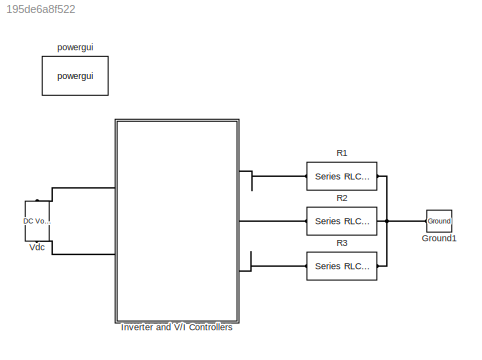
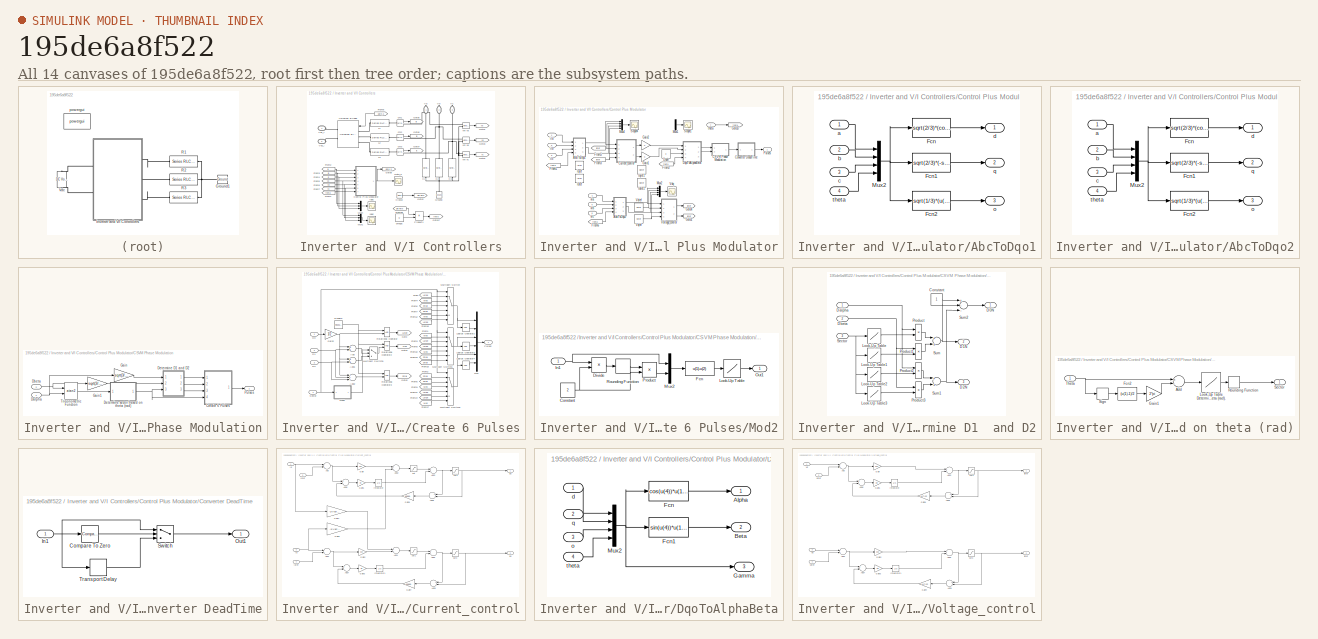
[diagram: thumbnail index - all 14 canvases of the model, root first then tree order]
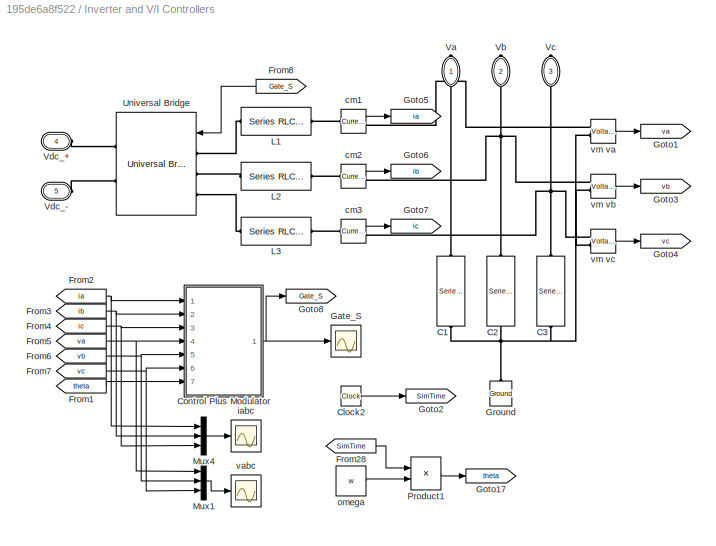
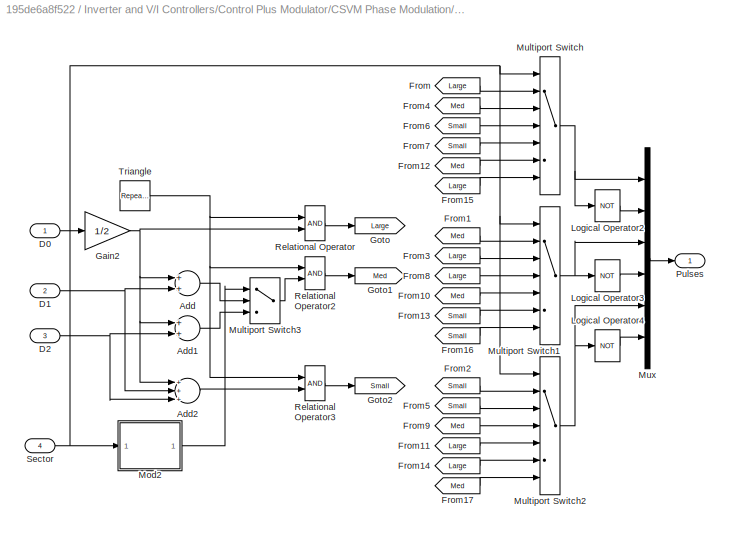
MODEL slx_195de6a8f522
KIND model
CONFIG AbsTol = 1e-5
CONFIG EnableMultiTasking = on
CONFIG FixedStep = auto
CONFIG MaxStep = 2e-6
CONFIG MinStep = auto
CONFIG RelTol = 1e-4
CONFIG SampleTimeConstraint = Unconstrained
CONFIG Solver = ode23t
CONFIG SolverName = ode23t
CONFIG StartTime = 0
CONFIG StopTime = 0.2
BLOCK [Reference] Ground1  REF=powerlib/Elements/Ground
  Ports = [0, 0, 0, 0, 0, 1]
  SourceBlock = powerlib/Elements/Ground
  SourceProductBaseCode = PS
  SourceProductName = Simscape Electrical
  SourceType = Ground
BLOCK [SubSystem] Inverter and V//I Controllers
  Ports = [0, 0, 0, 0, 0, 2, 3]
  RequestExecContextInheritance = off
BLOCK [Reference] Inverter and V//I Controllers/C1  REF=powerlib/Elements/Series RLC Branch
  Ports = [0, 0, 0, 0, 0, 1, 1]
  SourceBlock = powerlib/Elements/Series RLC Branch
  SourceProductBaseCode = PS
  SourceProductName = Simscape Electrical
  SourceType = Series RLC Branch
BLOCK [Reference] Inverter and V//I Controllers/C2  REF=powerlib/Elements/Series RLC Branch
  Ports = [0, 0, 0, 0, 0, 1, 1]
  SourceBlock = powerlib/Elements/Series RLC Branch
  SourceProductBaseCode = PS
  SourceProductName = Simscape Electrical
  SourceType = Series RLC Branch
BLOCK [Reference] Inverter and V//I Controllers/C3  REF=powerlib/Elements/Series RLC Branch
  Ports = [0, 0, 0, 0, 0, 1, 1]
  SourceBlock = powerlib/Elements/Series RLC Branch
  SourceProductBaseCode = PS
  SourceProductName = Simscape Electrical
  SourceType = Series RLC Branch
BLOCK [Clock] Inverter and V//I Controllers/Clock2
BLOCK [SubSystem] Inverter and V//I Controllers/Control Plus Modulator
  Ports = [7, 1]
  RequestExecContextInheritance = off
BLOCK [SubSystem] Inverter and V//I Controllers/Control Plus Modulator/AbcToDqo1
  Ports = [4, 3]
  RequestExecContextInheritance = off
BLOCK [Fcn] Inverter and V//I Controllers/Control Plus Modulator/AbcToDqo1/Fcn
  Expr = sqrt(2/3)*(cos(u(4))*u(1)+cos(u(4)-2*pi/3)*u(2)+cos(u(4)+2*pi/3)*u(3))
BLOCK [Fcn] Inverter and V//I Controllers/Control Plus Modulator/AbcToDqo1/Fcn1
  Expr = sqrt(2/3)*(-sin(u(4))*u(1)-sin(u(4)-2*pi/3)*u(2)-sin(u(4)+2*pi/3)*u(3))
BLOCK [Fcn] Inverter and V//I Controllers/Control Plus Modulator/AbcToDqo1/Fcn2
  Expr = sqrt(1/3)*(u(1)+u(2)+u(3))
BLOCK [Mux] Inverter and V//I Controllers/Control Plus Modulator/AbcToDqo1/Mux2
  DisplayOption = bar
  Ports = [4, 1]
BLOCK [Inport] Inverter and V//I Controllers/Control Plus Modulator/AbcToDqo1/a
  IconDisplay = Port number
BLOCK [Inport] Inverter and V//I Controllers/Control Plus Modulator/AbcToDqo1/b
  IconDisplay = Port number
  Port = 2
BLOCK [Inport] Inverter and V//I Controllers/Control Plus Modulator/AbcToDqo1/c
  IconDisplay = Port number
  Port = 3
BLOCK [Outport] Inverter and V//I Controllers/Control Plus Modulator/AbcToDqo1/d
  IconDisplay = Port number
BLOCK [Outport] Inverter and V//I Controllers/Control Plus Modulator/AbcToDqo1/o
  IconDisplay = Port number
  Port = 3
BLOCK [Outport] Inverter and V//I Controllers/Control Plus Modulator/AbcToDqo1/q
  IconDisplay = Port number
  Port = 2
BLOCK [Inport] Inverter and V//I Controllers/Control Plus Modulator/AbcToDqo1/theta
  IconDisplay = Port number
  Port = 4
BLOCK [SubSystem] Inverter and V//I Controllers/Control Plus Modulator/AbcToDqo2
  Ports = [4, 3]
  RequestExecContextInheritance = off
BLOCK [Fcn] Inverter and V//I Controllers/Control Plus Modulator/AbcToDqo2/Fcn
  Expr = sqrt(2/3)*(cos(u(4))*u(1)+cos(u(4)-2*pi/3)*u(2)+cos(u(4)+2*pi/3)*u(3))
BLOCK [Fcn] Inverter and V//I Controllers/Control Plus Modulator/AbcToDqo2/Fcn1
  Expr = sqrt(2/3)*(-sin(u(4))*u(1)-sin(u(4)-2*pi/3)*u(2)-sin(u(4)+2*pi/3)*u(3))
BLOCK [Fcn] Inverter and V//I Controllers/Control Plus Modulator/AbcToDqo2/Fcn2
  Expr = sqrt(1/3)*(u(1)+u(2)+u(3))
BLOCK [Mux] Inverter and V//I Controllers/Control Plus Modulator/AbcToDqo2/Mux2
  DisplayOption = bar
  Ports = [4, 1]
BLOCK [Inport] Inverter and V//I Controllers/Control Plus Modulator/AbcToDqo2/a
  IconDisplay = Port number
BLOCK [Inport] Inverter and V//I Controllers/Control Plus Modulator/AbcToDqo2/b
  IconDisplay = Port number
  Port = 2
BLOCK [Inport] Inverter and V//I Controllers/Control Plus Modulator/AbcToDqo2/c
  IconDisplay = Port number
  Port = 3
BLOCK [Outport] Inverter and V//I Controllers/Control Plus Modulator/AbcToDqo2/d
  IconDisplay = Port number
BLOCK [Outport] Inverter and V//I Controllers/Control Plus Modulator/AbcToDqo2/o
  IconDisplay = Port number
  Port = 3
BLOCK [Outport] Inverter and V//I Controllers/Control Plus Modulator/AbcToDqo2/q
  IconDisplay = Port number
  Port = 2
BLOCK [Inport] Inverter and V//I Controllers/Control Plus Modulator/AbcToDqo2/theta
  IconDisplay = Port number
  Port = 4
BLOCK [SubSystem] Inverter and V//I Controllers/Control Plus Modulator/CSVM Phase Modulation
  Ports = [2, 1]
  RequestExecContextInheritance = off
BLOCK [SubSystem] Inverter and V//I Controllers/Control Plus Modulator/CSVM Phase Modulation/Create 6 Pulses
  Ports = [4, 1]
  RequestExecContextInheritance = off
BLOCK [Sum] Inverter and V//I Controllers/Control Plus Modulator/CSVM Phase Modulation/Create 6 Pulses/Add
  InputSameDT = off
  OutDataTypeStr = Inherit: Inherit via internal rule
  Ports = [2, 1]
  SaturateOnIntegerOverflow = off
BLOCK [Sum] Inverter and V//I Controllers/Control Plus Modulator/CSVM Phase Modulation/Create 6 Pulses/Add1
  InputSameDT = off
  OutDataTypeStr = Inherit: Inherit via internal rule
  Ports = [2, 1]
  SaturateOnIntegerOverflow = off
BLOCK [Sum] Inverter and V//I Controllers/Control Plus Modulator/CSVM Phase Modulation/Create 6 Pulses/Add2
  InputSameDT = off
  Inputs = +++
  OutDataTypeStr = Inherit: Inherit via internal rule
  Ports = [3, 1]
  SaturateOnIntegerOverflow = off
BLOCK [Inport] Inverter and V//I Controllers/Control Plus Modulator/CSVM Phase Modulation/Create 6 Pulses/D0
  IconDisplay = Port number
BLOCK [Inport] Inverter and V//I Controllers/Control Plus Modulator/CSVM Phase Modulation/Create 6 Pulses/D1
  IconDisplay = Port number
  Port = 2
BLOCK [Inport] Inverter and V//I Controllers/Control Plus Modulator/CSVM Phase Modulation/Create 6 Pulses/D2
  IconDisplay = Port number
  Port = 3
BLOCK [From] Inverter and V//I Controllers/Control Plus Modulator/CSVM Phase Modulation/Create 6 Pulses/From
  GotoTag = Large
BLOCK [From] Inverter and V//I Controllers/Control Plus Modulator/CSVM Phase Modulation/Create 6 Pulses/From1
  GotoTag = Med
BLOCK [From] Inverter and V//I Controllers/Control Plus Modulator/CSVM Phase Modulation/Create 6 Pulses/From10
  GotoTag = Med
BLOCK [From] Inverter and V//I Controllers/Control Plus Modulator/CSVM Phase Modulation/Create 6 Pulses/From11
  GotoTag = Large
BLOCK [From] Inverter and V//I Controllers/Control Plus Modulator/CSVM Phase Modulation/Create 6 Pulses/From12
  GotoTag = Med
BLOCK [From] Inverter and V//I Controllers/Control Plus Modulator/CSVM Phase Modulation/Create 6 Pulses/From13
  GotoTag = Small
BLOCK [From] Inverter and V//I Controllers/Control Plus Modulator/CSVM Phase Modulation/Create 6 Pulses/From14
  GotoTag = Large
BLOCK [From] Inverter and V//I Controllers/Control Plus Modulator/CSVM Phase Modulation/Create 6 Pulses/From15
  GotoTag = Large
BLOCK [From] Inverter and V//I Controllers/Control Plus Modulator/CSVM Phase Modulation/Create 6 Pulses/From16
  GotoTag = Small
BLOCK [From] Inverter and V//I Controllers/Control Plus Modulator/CSVM Phase Modulation/Create 6 Pulses/From17
  GotoTag = Med
BLOCK [From] Inverter and V//I Controllers/Control Plus Modulator/CSVM Phase Modulation/Create 6 Pulses/From2
  GotoTag = Small
BLOCK [From] Inverter and V//I Controllers/Control Plus Modulator/CSVM Phase Modulation/Create 6 Pulses/From3
  GotoTag = Large
BLOCK [From] Inverter and V//I Controllers/Control Plus Modulator/CSVM Phase Modulation/Create 6 Pulses/From4
  GotoTag = Med
BLOCK [From] Inverter and V//I Controllers/Control Plus Modulator/CSVM Phase Modulation/Create 6 Pulses/From5
  GotoTag = Small
BLOCK [From] Inverter and V//I Controllers/Control Plus Modulator/CSVM Phase Modulation/Create 6 Pulses/From6
  GotoTag = Small
BLOCK [From] Inverter and V//I Controllers/Control Plus Modulator/CSVM Phase Modulation/Create 6 Pulses/From7
  GotoTag = Small
BLOCK [From] Inverter and V//I Controllers/Control Plus Modulator/CSVM Phase Modulation/Create 6 Pulses/From8
  GotoTag = Large
BLOCK [From] Inverter and V//I Controllers/Control Plus Modulator/CSVM Phase Modulation/Create 6 Pulses/From9
  GotoTag = Med
BLOCK [Gain] Inverter and V//I Controllers/Control Plus Modulator/CSVM Phase Modulation/Create 6 Pulses/Gain2
  Gain = 1/2
  OutDataTypeStr = Inherit: Inherit via internal rule
  ParamDataTypeStr = Inherit: Inherit via internal rule
  SaturateOnIntegerOverflow = off
BLOCK [Goto] Inverter and V//I Controllers/Control Plus Modulator/CSVM Phase Modulation/Create 6 Pulses/Goto
  GotoTag = Large
BLOCK [Goto] Inverter and V//I Controllers/Control Plus Modulator/CSVM Phase Modulation/Create 6 Pulses/Goto1
  GotoTag = Med
BLOCK [Goto] Inverter and V//I Controllers/Control Plus Modulator/CSVM Phase Modulation/Create 6 Pulses/Goto2
  GotoTag = Small
BLOCK [Logic] Inverter and V//I Controllers/Control Plus Modulator/CSVM Phase Modulation/Create 6 Pulses/Logical Operator2
  Operator = NOT
  OutDataTypeStr = float('double')
  Ports = [1, 1]
BLOCK [Logic] Inverter and V//I Controllers/Control Plus Modulator/CSVM Phase Modulation/Create 6 Pulses/Logical Operator3
  Operator = NOT
  OutDataTypeStr = float('double')
  Ports = [1, 1]
BLOCK [Logic] Inverter and V//I Controllers/Control Plus Modulator/CSVM Phase Modulation/Create 6 Pulses/Logical Operator4
  Operator = NOT
  OutDataTypeStr = float('double')
  Ports = [1, 1]
BLOCK [SubSystem] Inverter and V//I Controllers/Control Plus Modulator/CSVM Phase Modulation/Create 6 Pulses/Mod2
  Ports = [1, 1]
  RequestExecContextInheritance = off
BLOCK [Constant] Inverter and V//I Controllers/Control Plus Modulator/CSVM Phase Modulation/Create 6 Pulses/Mod2/Constant
  Value = 2
BLOCK [Product] Inverter and V//I Controllers/Control Plus Modulator/CSVM Phase Modulation/Create 6 Pulses/Mod2/Divide
  InputSameDT = off
  Inputs = */
  OutDataTypeStr = Inherit: Inherit via internal rule
  Ports = [2, 1]
  RndMeth = Floor
  SaturateOnIntegerOverflow = off
BLOCK [Fcn] Inverter and V//I Controllers/Control Plus Modulator/CSVM Phase Modulation/Create 6 Pulses/Mod2/Fcn
  Expr = u(1)-u(2)
BLOCK [Inport] Inverter and V//I Controllers/Control Plus Modulator/CSVM Phase Modulation/Create 6 Pulses/Mod2/In1
  IconDisplay = Port number
BLOCK [Lookup] Inverter and V//I Controllers/Control Plus Modulator/CSVM Phase Modulation/Create 6 Pulses/Mod2/Look-Up Table
  InputValues = [0 1]
  Table = [2 1]
BLOCK [Mux] Inverter and V//I Controllers/Control Plus Modulator/CSVM Phase Modulation/Create 6 Pulses/Mod2/Mux2
  DisplayOption = bar
  Inputs = 2
  Ports = [2, 1]
BLOCK [Outport] Inverter and V//I Controllers/Control Plus Modulator/CSVM Phase Modulation/Create 6 Pulses/Mod2/Out1
  IconDisplay = Port number
BLOCK [Product] Inverter and V//I Controllers/Control Plus Modulator/CSVM Phase Modulation/Create 6 Pulses/Mod2/Product
  InputSameDT = off
  OutDataTypeStr = Inherit: Inherit via internal rule
  Ports = [2, 1]
  SaturateOnIntegerOverflow = off
BLOCK [Rounding] Inverter and V//I Controllers/Control Plus Modulator/CSVM Phase Modulation/Create 6 Pulses/Mod2/Rounding Function
BLOCK [MultiPortSwitch] Inverter and V//I Controllers/Control Plus Modulator/CSVM Phase Modulation/Create 6 Pulses/Multiport Switch
  Inputs = 6
  Ports = [7, 1]
BLOCK [MultiPortSwitch] Inverter and V//I Controllers/Control Plus Modulator/CSVM Phase Modulation/Create 6 Pulses/Multiport Switch1
  Inputs = 6
  Ports = [7, 1]
BLOCK [MultiPortSwitch] Inverter and V//I Controllers/Control Plus Modulator/CSVM Phase Modulation/Create 6 Pulses/Multiport Switch2
  Inputs = 6
  Ports = [7, 1]
BLOCK [MultiPortSwitch] Inverter and V//I Controllers/Control Plus Modulator/CSVM Phase Modulation/Create 6 Pulses/Multiport Switch3
  InputSameDT = off
  Inputs = 2
  Ports = [3, 1]
  SaturateOnIntegerOverflow = off
BLOCK [Mux] Inverter and V//I Controllers/Control Plus Modulator/CSVM Phase Modulation/Create 6 Pulses/Mux
  DisplayOption = bar
  Inputs = 6
  Ports = [6, 1]
BLOCK [Outport] Inverter and V//I Controllers/Control Plus Modulator/CSVM Phase Modulation/Create 6 Pulses/Pulses
  IconDisplay = Port number
BLOCK [RelationalOperator] Inverter and V//I Controllers/Control Plus Modulator/CSVM Phase Modulation/Create 6 Pulses/Relational Operator
  OutDataTypeStr = float('double')
  Ports = [2, 1]
BLOCK [RelationalOperator] Inverter and V//I Controllers/Control Plus Modulator/CSVM Phase Modulation/Create 6 Pulses/Relational Operator2
  OutDataTypeStr = float('double')
  Ports = [2, 1]
BLOCK [RelationalOperator] Inverter and V//I Controllers/Control Plus Modulator/CSVM Phase Modulation/Create 6 Pulses/Relational Operator3
  OutDataTypeStr = float('double')
  Ports = [2, 1]
BLOCK [Inport] Inverter and V//I Controllers/Control Plus Modulator/CSVM Phase Modulation/Create 6 Pulses/Sector
  IconDisplay = Port number
  Port = 4
BLOCK [Reference] Inverter and V//I Controllers/Control Plus Modulator/CSVM Phase Modulation/Create 6 Pulses/Triangle  REF=simulink/Sources/Repeating
Sequence
  Ports = [0, 1]
  SourceBlock = simulink/Sources/Repeating\nSequence
  SourceProductBaseCode = SL
  SourceProductName = Simulink
  SourceType = Repeating table
BLOCK [Inport] Inverter and V//I Controllers/Control Plus Modulator/CSVM Phase Modulation/Dalpha
  IconDisplay = Port number
BLOCK [Inport] Inverter and V//I Controllers/Control Plus Modulator/CSVM Phase Modulation/Dbeta
  IconDisplay = Port number
  Port = 2
BLOCK [SubSystem] Inverter and V//I Controllers/Control Plus Modulator/CSVM Phase Modulation/Determine D1  and D2
  Ports = [3, 3]
  RequestExecContextInheritance = off
BLOCK [Constant] Inverter and V//I Controllers/Control Plus Modulator/CSVM Phase Modulation/Determine D1  and D2/Constant
BLOCK [Outport] Inverter and V//I Controllers/Control Plus Modulator/CSVM Phase Modulation/Determine D1  and D2/D0N
  IconDisplay = Port number
BLOCK [Outport] Inverter and V//I Controllers/Control Plus Modulator/CSVM Phase Modulation/Determine D1  and D2/D1N
  IconDisplay = Port number
  Port = 2
BLOCK [Outport] Inverter and V//I Controllers/Control Plus Modulator/CSVM Phase Modulation/Determine D1  and D2/D2N
  IconDisplay = Port number
  Port = 3
BLOCK [Inport] Inverter and V//I Controllers/Control Plus Modulator/CSVM Phase Modulation/Determine D1  and D2/Dalpha
  IconDisplay = Port number
BLOCK [Inport] Inverter and V//I Controllers/Control Plus Modulator/CSVM Phase Modulation/Determine D1  and D2/Dbeta
  IconDisplay = Port number
  Port = 2
BLOCK [Lookup] Inverter and V//I Controllers/Control Plus Modulator/CSVM Phase Modulation/Determine D1  and D2/Look-Up Table
  InputValues = [1 2 3 4 5 6]
  Table = [1 1 0 -1 -1 0]
BLOCK [Lookup] Inverter and V//I Controllers/Control Plus Modulator/CSVM Phase Modulation/Determine D1  and D2/Look-Up Table1
  InputValues = [1 2 3 4 5 6]
  Table = [-1/sqrt(3) 1/sqrt(3) 2/sqrt(3) 1/sqrt(3) -1/sqrt(3) -2/sqrt(3)]
BLOCK [Lookup] Inverter and V//I Controllers/Control Plus Modulator/CSVM Phase Modulation/Determine D1  and D2/Look-Up Table2
  InputValues = [1 2 3 4 5 6]
  Table = [0 -1 -1 0 1 1]
BLOCK [Lookup] Inverter and V//I Controllers/Control Plus Modulator/CSVM Phase Modulation/Determine D1  and D2/Look-Up Table3
  InputValues = [1 2 3 4 5 6]
  Table = [2/sqrt(3) 1/sqrt(3) -1/sqrt(3) -2/sqrt(3) -1/sqrt(3) 1/sqrt(3)]
BLOCK [Product] Inverter and V//I Controllers/Control Plus Modulator/CSVM Phase Modulation/Determine D1  and D2/Product
  Ports = [2, 1]
  RndMeth = Floor
BLOCK [Product] Inverter and V//I Controllers/Control Plus Modulator/CSVM Phase Modulation/Determine D1  and D2/Product1
  Ports = [2, 1]
  RndMeth = Floor
BLOCK [Product] Inverter and V//I Controllers/Control Plus Modulator/CSVM Phase Modulation/Determine D1  and D2/Product2
  Ports = [2, 1]
  RndMeth = Floor
BLOCK [Product] Inverter and V//I Controllers/Control Plus Modulator/CSVM Phase Modulation/Determine D1  and D2/Product3
  Ports = [2, 1]
  RndMeth = Floor
BLOCK [Inport] Inverter and V//I Controllers/Control Plus Modulator/CSVM Phase Modulation/Determine D1  and D2/Sector
  IconDisplay = Port number
  Port = 3
BLOCK [Sum] Inverter and V//I Controllers/Control Plus Modulator/CSVM Phase Modulation/Determine D1  and D2/Sum
  Ports = [2, 1]
BLOCK [Sum] Inverter and V//I Controllers/Control Plus Modulator/CSVM Phase Modulation/Determine D1  and D2/Sum1
  Ports = [2, 1]
BLOCK [Sum] Inverter and V//I Controllers/Control Plus Modulator/CSVM Phase Modulation/Determine D1  and D2/Sum2
  Inputs = +--
  Ports = [3, 1]
BLOCK [SubSystem] Inverter and V//I Controllers/Control Plus Modulator/CSVM Phase Modulation/Determine sector based on theta (rad)
  Ports = [1, 1]
  RequestExecContextInheritance = off
BLOCK [Sum] Inverter and V//I Controllers/Control Plus Modulator/CSVM Phase Modulation/Determine sector based on theta (rad)/Add
  InputSameDT = off
  Inputs = +-
  OutDataTypeStr = Inherit: Inherit via internal rule
  Ports = [2, 1]
  SaturateOnIntegerOverflow = off
BLOCK [Fcn] Inverter and V//I Controllers/Control Plus Modulator/CSVM Phase Modulation/Determine sector based on theta (rad)/Fcn2
  Expr = (u(1)-1)/2
BLOCK [Gain] Inverter and V//I Controllers/Control Plus Modulator/CSVM Phase Modulation/Determine sector based on theta (rad)/Gain1
  Gain = 2*pi
  OutDataTypeStr = Inherit: Inherit via internal rule
  ParamDataTypeStr = Inherit: Inherit via internal rule
  SaturateOnIntegerOverflow = off
BLOCK [Lookup] Inverter and V//I Controllers/Control Plus Modulator/CSVM Phase Modulation/Determine sector based on theta (rad)/Look-Up Table Determine the sector of U* based on theta (rad). 
  InputValues = [0 pi/3 2*pi/3 pi 4*pi/3 5*pi/3 2*pi ]
  Table = [1 2 3 4 5 6 6.5]
BLOCK [Rounding] Inverter and V//I Controllers/Control Plus Modulator/CSVM Phase Modulation/Determine sector based on theta (rad)/Rounding Function
BLOCK [Outport] Inverter and V//I Controllers/Control Plus Modulator/CSVM Phase Modulation/Determine sector based on theta (rad)/Sector
  IconDisplay = Port number
BLOCK [Signum] Inverter and V//I Controllers/Control Plus Modulator/CSVM Phase Modulation/Determine sector based on theta (rad)/Sign
BLOCK [Inport] Inverter and V//I Controllers/Control Plus Modulator/CSVM Phase Modulation/Determine sector based on theta (rad)/Theta
  IconDisplay = Port number
BLOCK [Gain] Inverter and V//I Controllers/Control Plus Modulator/CSVM Phase Modulation/Gain
  Gain = sqrt(3/2)
  OutDataTypeStr = Inherit: Inherit via internal rule
  ParamDataTypeStr = Inherit: Inherit via internal rule
  SaturateOnIntegerOverflow = off
BLOCK [Gain] Inverter and V//I Controllers/Control Plus Modulator/CSVM Phase Modulation/Gain1
  Gain = sqrt(3/2)
  OutDataTypeStr = Inherit: Inherit via internal rule
  ParamDataTypeStr = Inherit: Inherit via internal rule
  SaturateOnIntegerOverflow = off
BLOCK [Outport] Inverter and V//I Controllers/Control Plus Modulator/CSVM Phase Modulation/Pulses
  IconDisplay = Port number
BLOCK [Trigonometry] Inverter and V//I Controllers/Control Plus Modulator/CSVM Phase Modulation/Trigonometric Function
  Operator = atan2
  Ports = [2, 1]
BLOCK [SubSystem] Inverter and V//I Controllers/Control Plus Modulator/Converter DeadTime
  Ports = [1, 1]
  RequestExecContextInheritance = off
BLOCK [Reference] Inverter and V//I Controllers/Control Plus Modulator/Converter DeadTime/Compare To Zero  REF=simulink/Logic and Bit
Operations/Compare
To Zero
  Ports = [1, 1]
  SourceBlock = simulink/Logic and Bit\nOperations/Compare\nTo Zero
  SourceProductBaseCode = SL
  SourceProductName = Simulink
  SourceType = Compare To Zero
BLOCK [Inport] Inverter and V//I Controllers/Control Plus Modulator/Converter DeadTime/In1
  IconDisplay = Port number
BLOCK [Outport] Inverter and V//I Controllers/Control Plus Modulator/Converter DeadTime/Out1
  IconDisplay = Port number
BLOCK [Switch] Inverter and V//I Controllers/Control Plus Modulator/Converter DeadTime/Switch
  Criteria = u2 ~= 0
  InputSameDT = off
  SaturateOnIntegerOverflow = off
BLOCK [TransportDelay] Inverter and V//I Controllers/Control Plus Modulator/Converter DeadTime/Transport Delay
  DelayTime = DT
  Ports = [1, 1]
BLOCK [SubSystem] Inverter and V//I Controllers/Control Plus Modulator/Current_control
  Ports = [4, 2]
  RequestExecContextInheritance = off
BLOCK [Sum] Inverter and V//I Controllers/Control Plus Modulator/Current_control/Add
  InputSameDT = off
  Inputs = -+
  OutDataTypeStr = Inherit: Inherit via internal rule
  Ports = [2, 1]
  SaturateOnIntegerOverflow = off
BLOCK [Sum] Inverter and V//I Controllers/Control Plus Modulator/Current_control/Add1
  InputSameDT = off
  Inputs = -+
  OutDataTypeStr = Inherit: Inherit via internal rule
  Ports = [2, 1]
  SaturateOnIntegerOverflow = off
BLOCK [Sum] Inverter and V//I Controllers/Control Plus Modulator/Current_control/Add2
  InputSameDT = off
  OutDataTypeStr = Inherit: Inherit via internal rule
  Ports = [2, 1]
  SaturateOnIntegerOverflow = off
BLOCK [Sum] Inverter and V//I Controllers/Control Plus Modulator/Current_control/Add3
  InputSameDT = off
  OutDataTypeStr = Inherit: Inherit via internal rule
  Ports = [2, 1]
  SaturateOnIntegerOverflow = off
BLOCK [Sum] Inverter and V//I Controllers/Control Plus Modulator/Current_control/Add4
  InputSameDT = off
  OutDataTypeStr = Inherit: Inherit via internal rule
  Ports = [2, 1]
  SaturateOnIntegerOverflow = off
BLOCK [Sum] Inverter and V//I Controllers/Control Plus Modulator/Current_control/Add5
  InputSameDT = off
  OutDataTypeStr = Inherit: Inherit via internal rule
  Ports = [2, 1]
  SaturateOnIntegerOverflow = off
BLOCK [Sum] Inverter and V//I Controllers/Control Plus Modulator/Current_control/Add6
  InputSameDT = off
  Inputs = +-
  OutDataTypeStr = Inherit: Inherit via internal rule
  Ports = [2, 1]
  SaturateOnIntegerOverflow = off
BLOCK [Sum] Inverter and V//I Controllers/Control Plus Modulator/Current_control/Add7
  InputSameDT = off
  Inputs = +-
  OutDataTypeStr = Inherit: Inherit via internal rule
  Ports = [2, 1]
  SaturateOnIntegerOverflow = off
BLOCK [Sum] Inverter and V//I Controllers/Control Plus Modulator/Current_control/Add8
  InputSameDT = off
  Inputs = +-
  OutDataTypeStr = Inherit: Inherit via internal rule
  Ports = [2, 1]
  SaturateOnIntegerOverflow = off
BLOCK [Sum] Inverter and V//I Controllers/Control Plus Modulator/Current_control/Add9
  InputSameDT = off
  Inputs = +-
  OutDataTypeStr = Inherit: Inherit via internal rule
  Ports = [2, 1]
  SaturateOnIntegerOverflow = off
BLOCK [Gain] Inverter and V//I Controllers/Control Plus Modulator/Current_control/Gain
  Gain = kpi
  OutDataTypeStr = Inherit: Inherit via internal rule
  ParamDataTypeStr = Inherit: Inherit via internal rule
  SaturateOnIntegerOverflow = off
BLOCK [Gain] Inverter and V//I Controllers/Control Plus Modulator/Current_control/Gain1
  Gain = kii
  OutDataTypeStr = Inherit: Inherit via internal rule
  ParamDataTypeStr = Inherit: Inherit via internal rule
  SaturateOnIntegerOverflow = off
BLOCK [Gain] Inverter and V//I Controllers/Control Plus Modulator/Current_control/Gain2
  Gain = kpi
  OutDataTypeStr = Inherit: Inherit via internal rule
  ParamDataTypeStr = Inherit: Inherit via internal rule
  SaturateOnIntegerOverflow = off
BLOCK [Gain] Inverter and V//I Controllers/Control Plus Modulator/Current_control/Gain3
  Gain = kii
  OutDataTypeStr = Inherit: Inherit via internal rule
  ParamDataTypeStr = Inherit: Inherit via internal rule
  SaturateOnIntegerOverflow = off
BLOCK [Gain] Inverter and V//I Controllers/Control Plus Modulator/Current_control/Gain4
  Gain = -2/Vdcref*L*w
  OutDataTypeStr = Inherit: Inherit via internal rule
  ParamDataTypeStr = Inherit: Inherit via internal rule
  SaturateOnIntegerOverflow = off
BLOCK [Gain] Inverter and V//I Controllers/Control Plus Modulator/Current_control/Gain5
  Gain = -2/Vdcref*L*w
  OutDataTypeStr = Inherit: Inherit via internal rule
  ParamDataTypeStr = Inherit: Inherit via internal rule
  SaturateOnIntegerOverflow = off
BLOCK [Gain] Inverter and V//I Controllers/Control Plus Modulator/Current_control/Gain6
  Gain = 10000
  OutDataTypeStr = Inherit: Inherit via internal rule
  ParamDataTypeStr = Inherit: Inherit via internal rule
  SaturateOnIntegerOverflow = off
BLOCK [Gain] Inverter and V//I Controllers/Control Plus Modulator/Current_control/Gain7
  Gain = 10000
  OutDataTypeStr = Inherit: Inherit via internal rule
  ParamDataTypeStr = Inherit: Inherit via internal rule
  SaturateOnIntegerOverflow = off
BLOCK [Inport] Inverter and V//I Controllers/Control Plus Modulator/Current_control/Id
  IconDisplay = Port number
BLOCK [Inport] Inverter and V//I Controllers/Control Plus Modulator/Current_control/Idref
  IconDisplay = Port number
  Port = 2
BLOCK [Integrator] Inverter and V//I Controllers/Control Plus Modulator/Current_control/Integrator
  Ports = [1, 1]
BLOCK [Integrator] Inverter and V//I Controllers/Control Plus Modulator/Current_control/Integrator1
  Ports = [1, 1]
BLOCK [Inport] Inverter and V//I Controllers/Control Plus Modulator/Current_control/Iq
  IconDisplay = Port number
  Port = 3
BLOCK [Inport] Inverter and V//I Controllers/Control Plus Modulator/Current_control/Iqref
  IconDisplay = Port number
  Port = 4
BLOCK [Outport] Inverter and V//I Controllers/Control Plus Modulator/Current_control/dd
  IconDisplay = Port number
BLOCK [Outport] Inverter and V//I Controllers/Control Plus Modulator/Current_control/dq
  IconDisplay = Port number
  Port = 2
BLOCK [Saturate] Inverter and V//I Controllers/Control Plus Modulator/Current_control/sat
  InputPortMap = u0
  LowerLimit = -1
  Ports = [1, 1]
  UpperLimit = 1
BLOCK [Saturate] Inverter and V//I Controllers/Control Plus Modulator/Current_control/sat1
  InputPortMap = u0
  LowerLimit = -1
  Ports = [1, 1]
  UpperLimit = 1
BLOCK [Saturate] Inverter and V//I Controllers/Control Plus Modulator/Current_control/sat2
  InputPortMap = u0
  LowerLimit = -1
  Ports = [1, 1]
  UpperLimit = 1
BLOCK [Saturate] Inverter and V//I Controllers/Control Plus Modulator/Current_control/sat3
  InputPortMap = u0
  LowerLimit = -1
  Ports = [1, 1]
  UpperLimit = 1
BLOCK [Constant] Inverter and V//I Controllers/Control Plus Modulator/Doph
  Value = 0
BLOCK [SubSystem] Inverter and V//I Controllers/Control Plus Modulator/DqoToAlphaBeta
  Ports = [4, 3]
  RequestExecContextInheritance = off
BLOCK [Outport] Inverter and V//I Controllers/Control Plus Modulator/DqoToAlphaBeta/Alpha
  IconDisplay = Port number
BLOCK [Outport] Inverter and V//I Controllers/Control Plus Modulator/DqoToAlphaBeta/Beta
  IconDisplay = Port number
  Port = 2
BLOCK [Fcn] Inverter and V//I Controllers/Control Plus Modulator/DqoToAlphaBeta/Fcn
  Expr = cos(u(4))*u(1)-sin(u(4))*u(2)
BLOCK [Fcn] Inverter and V//I Controllers/Control Plus Modulator/DqoToAlphaBeta/Fcn1
  Expr = sin(u(4))*u(1)+cos(u(4))*u(2)
BLOCK [Outport] Inverter and V//I Controllers/Control Plus Modulator/DqoToAlphaBeta/Gamma
  IconDisplay = Port number
  Port = 3
BLOCK [Mux] Inverter and V//I Controllers/Control Plus Modulator/DqoToAlphaBeta/Mux2
  DisplayOption = bar
  Ports = [4, 1]
BLOCK [Inport] Inverter and V//I Controllers/Control Plus Modulator/DqoToAlphaBeta/d
  IconDisplay = Port number
BLOCK [Inport] Inverter and V//I Controllers/Control Plus Modulator/DqoToAlphaBeta/o
  IconDisplay = Port number
  Port = 3
BLOCK [Inport] Inverter and V//I Controllers/Control Plus Modulator/DqoToAlphaBeta/q
  IconDisplay = Port number
  Port = 2
BLOCK [Inport] Inverter and V//I Controllers/Control Plus Modulator/DqoToAlphaBeta/theta
  IconDisplay = Port number
  Port = 4
BLOCK [From] Inverter and V//I Controllers/Control Plus Modulator/From1
  CloseFcn = tagdialog Close
  GotoTag = theta
BLOCK [From] Inverter and V//I Controllers/Control Plus Modulator/From2
  CloseFcn = tagdialog Close
  GotoTag = theta
BLOCK [From] Inverter and V//I Controllers/Control Plus Modulator/From3
  CloseFcn = tagdialog Close
  GotoTag = iqref
BLOCK [From] Inverter and V//I Controllers/Control Plus Modulator/From5
  CloseFcn = tagdialog Close
  GotoTag = idref
BLOCK [From] Inverter and V//I Controllers/Control Plus Modulator/From6
  CloseFcn = tagdialog Close
  GotoTag = theta
BLOCK [Gain] Inverter and V//I Controllers/Control Plus Modulator/Gain1
  OutDataTypeStr = Inherit: Inherit via internal rule
  ParamDataTypeStr = Inherit: Inherit via internal rule
  SaturateOnIntegerOverflow = off
BLOCK [Gain] Inverter and V//I Controllers/Control Plus Modulator/Gain2
  OutDataTypeStr = Inherit: Inherit via internal rule
  ParamDataTypeStr = Inherit: Inherit via internal rule
  SaturateOnIntegerOverflow = off
BLOCK [Goto] Inverter and V//I Controllers/Control Plus Modulator/Goto1
  GotoTag = iqref
BLOCK [Goto] Inverter and V//I Controllers/Control Plus Modulator/Goto17
  GotoTag = theta
BLOCK [Goto] Inverter and V//I Controllers/Control Plus Modulator/Goto4
  GotoTag = idref
BLOCK [Constant] Inverter and V//I Controllers/Control Plus Modulator/Idref
  Value = Idref
BLOCK [Constant] Inverter and V//I Controllers/Control Plus Modulator/Idref1
  Value = Dqref
BLOCK [Constant] Inverter and V//I Controllers/Control Plus Modulator/Iqref
  Value = Iqref
BLOCK [Constant] Inverter and V//I Controllers/Control Plus Modulator/Iqref1
  Value = Ddref
BLOCK [Mux] Inverter and V//I Controllers/Control Plus Modulator/Mux1
  DisplayOption = bar
  Inputs = 2
  Ports = [2, 1]
BLOCK [Mux] Inverter and V//I Controllers/Control Plus Modulator/Mux2
  DisplayOption = bar
  Ports = [4, 1]
BLOCK [Mux] Inverter and V//I Controllers/Control Plus Modulator/Mux4
  DisplayOption = bar
  Ports = [4, 1]
BLOCK [Outport] Inverter and V//I Controllers/Control Plus Modulator/Pulses
  IconDisplay = Port number
BLOCK [Scope] Inverter and V//I Controllers/Control Plus Modulator/Scope1
  Floating = off
  NumInputPorts = 1
  Ports = [1]
  ScopeSpecificationString = Simulink.scopes.TimeScopeBlockCfg('CurrentConfiguration', extmgr.ConfigurationSet(extmgr.Configuration('Core','General UI',true),extmgr.Configuration('Core','Source UI',true),extmgr.Configuration('Sources','WiredSimulink',true,'DataLogging',true,'DataLoggingVariableName','ddq_matlab','DataLoggingSaveFormat','Array','DataLoggingDecimation','1','DataLoggingDecimateData',true),extmgr.Configuration('V...<+1659ch>
BLOCK [Scope] Inverter and V//I Controllers/Control Plus Modulator/Scope4
  Floating = off
  NumInputPorts = 1
  Ports = [1]
  ScopeSpecificationString = Simulink.scopes.TimeScopeBlockCfg('CurrentConfiguration', extmgr.ConfigurationSet(extmgr.Configuration('Core','General UI',true),extmgr.Configuration('Core','Source UI',true),extmgr.Configuration('Sources','WiredSimulink',true,'DataLogging',true,'DataLoggingVariableName','ildq_matlab','DataLoggingSaveFormat','Array','DataLoggingDecimation','1','DataLoggingDecimateData',true),extmgr.Configuration('...<+1772ch>
BLOCK [Scope] Inverter and V//I Controllers/Control Plus Modulator/Vdq
  Floating = off
  NumInputPorts = 1
  Ports = [1]
  ScopeSpecificationString = Simulink.scopes.TimeScopeBlockCfg('CurrentConfiguration', extmgr.ConfigurationSet(extmgr.Configuration('Core','General UI',true),extmgr.Configuration('Core','Source UI',true),extmgr.Configuration('Sources','WiredSimulink',true,'DataLoggingVariableName','ildq_matlab1','DataLoggingSaveFormat','Array','DataLoggingDecimation','1','DataLoggingDecimateData',true),extmgr.Configuration('Visuals','Time Dom...<+1812ch>
BLOCK [Constant] Inverter and V//I Controllers/Control Plus Modulator/Vdref
  Value = Vdref
BLOCK [SubSystem] Inverter and V//I Controllers/Control Plus Modulator/Voltage_control
  Ports = [4, 2]
  RequestExecContextInheritance = off
BLOCK [Sum] Inverter and V//I Controllers/Control Plus Modulator/Voltage_control/Add
  InputSameDT = off
  Inputs = -+
  OutDataTypeStr = Inherit: Inherit via internal rule
  Ports = [2, 1]
  SaturateOnIntegerOverflow = off
BLOCK [Sum] Inverter and V//I Controllers/Control Plus Modulator/Voltage_control/Add1
  InputSameDT = off
  Inputs = -+
  OutDataTypeStr = Inherit: Inherit via internal rule
  Ports = [2, 1]
  SaturateOnIntegerOverflow = off
BLOCK [Sum] Inverter and V//I Controllers/Control Plus Modulator/Voltage_control/Add3
  InputSameDT = off
  OutDataTypeStr = Inherit: Inherit via internal rule
  Ports = [2, 1]
  SaturateOnIntegerOverflow = off
BLOCK [Sum] Inverter and V//I Controllers/Control Plus Modulator/Voltage_control/Add5
  InputSameDT = off
  OutDataTypeStr = Inherit: Inherit via internal rule
  Ports = [2, 1]
  SaturateOnIntegerOverflow = off
BLOCK [Sum] Inverter and V//I Controllers/Control Plus Modulator/Voltage_control/Add6
  InputSameDT = off
  Inputs = +-
  OutDataTypeStr = Inherit: Inherit via internal rule
  Ports = [2, 1]
  SaturateOnIntegerOverflow = off
BLOCK [Sum] Inverter and V//I Controllers/Control Plus Modulator/Voltage_control/Add7
  InputSameDT = off
  Inputs = +-
  OutDataTypeStr = Inherit: Inherit via internal rule
  Ports = [2, 1]
  SaturateOnIntegerOverflow = off
BLOCK [Sum] Inverter and V//I Controllers/Control Plus Modulator/Voltage_control/Add8
  InputSameDT = off
  Inputs = +-
  OutDataTypeStr = Inherit: Inherit via internal rule
  Ports = [2, 1]
  SaturateOnIntegerOverflow = off
BLOCK [Sum] Inverter and V//I Controllers/Control Plus Modulator/Voltage_control/Add9
  InputSameDT = off
  Inputs = +-
  OutDataTypeStr = Inherit: Inherit via internal rule
  Ports = [2, 1]
  SaturateOnIntegerOverflow = off
BLOCK [Gain] Inverter and V//I Controllers/Control Plus Modulator/Voltage_control/Gain
  Gain = kpv
  OutDataTypeStr = Inherit: Inherit via internal rule
  ParamDataTypeStr = Inherit: Inherit via internal rule
  SaturateOnIntegerOverflow = off
BLOCK [Gain] Inverter and V//I Controllers/Control Plus Modulator/Voltage_control/Gain1
  Gain = kiv
  OutDataTypeStr = Inherit: Inherit via internal rule
  ParamDataTypeStr = Inherit: Inherit via internal rule
  SaturateOnIntegerOverflow = off
BLOCK [Gain] Inverter and V//I Controllers/Control Plus Modulator/Voltage_control/Gain2
  Gain = kpv
  OutDataTypeStr = Inherit: Inherit via internal rule
  ParamDataTypeStr = Inherit: Inherit via internal rule
  SaturateOnIntegerOverflow = off
BLOCK [Gain] Inverter and V//I Controllers/Control Plus Modulator/Voltage_control/Gain3
  Gain = kiv
  OutDataTypeStr = Inherit: Inherit via internal rule
  ParamDataTypeStr = Inherit: Inherit via internal rule
  SaturateOnIntegerOverflow = off
BLOCK [Gain] Inverter and V//I Controllers/Control Plus Modulator/Voltage_control/Gain4
  Gain = 1/C*R
  OutDataTypeStr = Inherit: Inherit via internal rule
  ParamDataTypeStr = Inherit: Inherit via internal rule
  SaturateOnIntegerOverflow = off
BLOCK [Gain] Inverter and V//I Controllers/Control Plus Modulator/Voltage_control/Gain6
  Gain = 1/C*R
  OutDataTypeStr = Inherit: Inherit via internal rule
  ParamDataTypeStr = Inherit: Inherit via internal rule
  SaturateOnIntegerOverflow = off
BLOCK [Integrator] Inverter and V//I Controllers/Control Plus Modulator/Voltage_control/Integrator
  Ports = [1, 1]
BLOCK [Integrator] Inverter and V//I Controllers/Control Plus Modulator/Voltage_control/Integrator1
  Ports = [1, 1]
BLOCK [Inport] Inverter and V//I Controllers/Control Plus Modulator/Voltage_control/Vd
  IconDisplay = Port number
BLOCK [Inport] Inverter and V//I Controllers/Control Plus Modulator/Voltage_control/Vdref
  IconDisplay = Port number
  Port = 2
BLOCK [Inport] Inverter and V//I Controllers/Control Plus Modulator/Voltage_control/Vq
  IconDisplay = Port number
  Port = 3
BLOCK [Inport] Inverter and V//I Controllers/Control Plus Modulator/Voltage_control/Vqref
  IconDisplay = Port number
  Port = 4
BLOCK [Outport] Inverter and V//I Controllers/Control Plus Modulator/Voltage_control/idref
  IconDisplay = Port number
BLOCK [Outport] Inverter and V//I Controllers/Control Plus Modulator/Voltage_control/iqref
  IconDisplay = Port number
  Port = 2
BLOCK [Saturate] Inverter and V//I Controllers/Control Plus Modulator/Voltage_control/sat2
  InputPortMap = u0
  LowerLimit = -40
  Ports = [1, 1]
  UpperLimit = 40
BLOCK [Saturate] Inverter and V//I Controllers/Control Plus Modulator/Voltage_control/sat3
  InputPortMap = u0
  LowerLimit = -40
  Ports = [1, 1]
  UpperLimit = 40
BLOCK [Constant] Inverter and V//I Controllers/Control Plus Modulator/Vqref
  Value = Vqref
BLOCK [Inport] Inverter and V//I Controllers/Control Plus Modulator/ila
  IconDisplay = Port number
BLOCK [Inport] Inverter and V//I Controllers/Control Plus Modulator/ilb
  IconDisplay = Port number
  Port = 2
BLOCK [Inport] Inverter and V//I Controllers/Control Plus Modulator/ilc
  IconDisplay = Port number
  Port = 3
BLOCK [Inport] Inverter and V//I Controllers/Control Plus Modulator/theta
  IconDisplay = Port number
  Port = 7
BLOCK [Inport] Inverter and V//I Controllers/Control Plus Modulator/vla
  IconDisplay = Port number
  Port = 4
BLOCK [Inport] Inverter and V//I Controllers/Control Plus Modulator/vlb
  IconDisplay = Port number
  Port = 5
BLOCK [Inport] Inverter and V//I Controllers/Control Plus Modulator/vlc
  IconDisplay = Port number
  Port = 6
BLOCK [From] Inverter and V//I Controllers/From1
  CloseFcn = tagdialog Close
  GotoTag = theta
BLOCK [From] Inverter and V//I Controllers/From2
  CloseFcn = tagdialog Close
  GotoTag = ia
BLOCK [From] Inverter and V//I Controllers/From28
  CloseFcn = tagdialog Close
  GotoTag = SimTime
BLOCK [From] Inverter and V//I Controllers/From3
  CloseFcn = tagdialog Close
  GotoTag = ib
BLOCK [From] Inverter and V//I Controllers/From4
  CloseFcn = tagdialog Close
  GotoTag = ic
BLOCK [From] Inverter and V//I Controllers/From5
  CloseFcn = tagdialog Close
  GotoTag = va
BLOCK [From] Inverter and V//I Controllers/From6
  CloseFcn = tagdialog Close
  GotoTag = vb
BLOCK [From] Inverter and V//I Controllers/From7
  CloseFcn = tagdialog Close
  GotoTag = vc
BLOCK [From] Inverter and V//I Controllers/From8
  CloseFcn = tagdialog Close
  GotoTag = Gate_S
BLOCK [Scope] Inverter and V//I Controllers/Gate_S
  Floating = off
  NumInputPorts = 1
  Ports = [1]
  ScopeSpecificationString = Simulink.scopes.TimeScopeBlockCfg('CurrentConfiguration', extmgr.ConfigurationSet(extmgr.Configuration('Core','General UI',true),extmgr.Configuration('Core','Source UI',true),extmgr.Configuration('Sources','WiredSimulink',true,'DataLogging',true,'DataLoggingVariableName','vdc_matlab1','DataLoggingSaveFormat','Array','DataLoggingDecimation','1','DataLoggingDecimateData',true),extmgr.Configuration('...<+1877ch>
BLOCK [Goto] Inverter and V//I Controllers/Goto1
  GotoTag = va
BLOCK [Goto] Inverter and V//I Controllers/Goto17
  GotoTag = theta
BLOCK [Goto] Inverter and V//I Controllers/Goto2
  GotoTag = SimTime
BLOCK [Goto] Inverter and V//I Controllers/Goto3
  GotoTag = vb
BLOCK [Goto] Inverter and V//I Controllers/Goto4
  GotoTag = vc
BLOCK [Goto] Inverter and V//I Controllers/Goto5
  GotoTag = ia
BLOCK [Goto] Inverter and V//I Controllers/Goto6
  GotoTag = ib
BLOCK [Goto] Inverter and V//I Controllers/Goto7
  GotoTag = ic
BLOCK [Goto] Inverter and V//I Controllers/Goto8
  GotoTag = Gate_S
BLOCK [Reference] Inverter and V//I Controllers/Ground  REF=powerlib/Elements/Ground
  Ports = [0, 0, 0, 0, 0, 1]
  SourceBlock = powerlib/Elements/Ground
  SourceProductBaseCode = PS
  SourceProductName = Simscape Electrical
  SourceType = Ground
BLOCK [Reference] Inverter and V//I Controllers/L1  REF=powerlib/Elements/Series RLC Branch
  Ports = [0, 0, 0, 0, 0, 1, 1]
  SourceBlock = powerlib/Elements/Series RLC Branch
  SourceProductBaseCode = PS
  SourceProductName = Simscape Electrical
  SourceType = Series RLC Branch
BLOCK [Reference] Inverter and V//I Controllers/L2  REF=powerlib/Elements/Series RLC Branch
  Ports = [0, 0, 0, 0, 0, 1, 1]
  SourceBlock = powerlib/Elements/Series RLC Branch
  SourceProductBaseCode = PS
  SourceProductName = Simscape Electrical
  SourceType = Series RLC Branch
BLOCK [Reference] Inverter and V//I Controllers/L3  REF=powerlib/Elements/Series RLC Branch
  Ports = [0, 0, 0, 0, 0, 1, 1]
  SourceBlock = powerlib/Elements/Series RLC Branch
  SourceProductBaseCode = PS
  SourceProductName = Simscape Electrical
  SourceType = Series RLC Branch
BLOCK [Mux] Inverter and V//I Controllers/Mux1
  DisplayOption = bar
  Inputs = 3
  Ports = [3, 1]
BLOCK [Mux] Inverter and V//I Controllers/Mux4
  DisplayOption = bar
  Inputs = 3
  Ports = [3, 1]
BLOCK [Product] Inverter and V//I Controllers/Product1
  InputSameDT = off
  OutDataTypeStr = Inherit: Inherit via internal rule
  Ports = [2, 1]
  SaturateOnIntegerOverflow = off
BLOCK [Reference] Inverter and V//I Controllers/Universal Bridge  REF=powerlib/Power
Electronics/Universal Bridge
  Ports = [1, 0, 0, 0, 0, 3, 2]
  SourceBlock = powerlib/Power\nElectronics/Universal Bridge
  SourceProductBaseCode = PS
  SourceProductName = Simscape Electrical
  SourceType = Universal Bridge
BLOCK [PMIOPort] Inverter and V//I Controllers/Va
  Side = Right
  Tag = PMCPort
BLOCK [PMIOPort] Inverter and V//I Controllers/Vb
  Port = 2
  Side = Right
  Tag = PMCPort
BLOCK [PMIOPort] Inverter and V//I Controllers/Vc
  Port = 3
  Side = Right
  Tag = PMCPort
BLOCK [PMIOPort] Inverter and V//I Controllers/Vdc_+
  Port = 4
  Side = Left
  Tag = PMCPort
BLOCK [PMIOPort] Inverter and V//I Controllers/Vdc_-
  Port = 5
  Side = Left
  Tag = PMCPort
BLOCK [Reference] Inverter and V//I Controllers/cm1  REF=powerlib/Measurements/Current Measurement
  Ports = [0, 1, 0, 0, 0, 1, 1]
  SourceBlock = powerlib/Measurements/Current Measurement
  SourceProductBaseCode = PS
  SourceProductName = Simscape Electrical
  SourceType = Current Measurement
BLOCK [Reference] Inverter and V//I Controllers/cm2  REF=powerlib/Measurements/Current Measurement
  Ports = [0, 1, 0, 0, 0, 1, 1]
  SourceBlock = powerlib/Measurements/Current Measurement
  SourceProductBaseCode = PS
  SourceProductName = Simscape Electrical
  SourceType = Current Measurement
BLOCK [Reference] Inverter and V//I Controllers/cm3  REF=powerlib/Measurements/Current Measurement
  Ports = [0, 1, 0, 0, 0, 1, 1]
  SourceBlock = powerlib/Measurements/Current Measurement
  SourceProductBaseCode = PS
  SourceProductName = Simscape Electrical
  SourceType = Current Measurement
BLOCK [Scope] Inverter and V//I Controllers/iabc
  Floating = off
  NumInputPorts = 1
  Ports = [1]
  ScopeSpecificationString = Simulink.scopes.TimeScopeBlockCfg('CurrentConfiguration', extmgr.ConfigurationSet(extmgr.Configuration('Core','General UI',true),extmgr.Configuration('Core','Source UI',true),extmgr.Configuration('Sources','WiredSimulink',true,'DataLogging',true,'DataLoggingVariableName','vdc_matlab2','DataLoggingSaveFormat','Array','DataLoggingDecimation','1','DataLoggingDecimateData',true),extmgr.Configuration('...<+1740ch>
BLOCK [Constant] Inverter and V//I Controllers/omega
  Value = w
BLOCK [Scope] Inverter and V//I Controllers/vabc
  Floating = off
  NumInputPorts = 1
  Ports = [1]
  ScopeSpecificationString = Simulink.scopes.TimeScopeBlockCfg('CurrentConfiguration', extmgr.ConfigurationSet(extmgr.Configuration('Core','General UI',true),extmgr.Configuration('Core','Source UI',true),extmgr.Configuration('Sources','WiredSimulink',true,'DataLogging',true,'DataLoggingVariableName','vdc_matlab','DataLoggingSaveFormat','Array','DataLoggingDecimation','1','DataLoggingDecimateData',true),extmgr.Configuration('V...<+1815ch>
BLOCK [Reference] Inverter and V//I Controllers/vm va  REF=powerlib/Measurements/Voltage Measurement
  Ports = [0, 1, 0, 0, 0, 2]
  SourceBlock = powerlib/Measurements/Voltage Measurement
  SourceProductBaseCode = PS
  SourceProductName = Simscape Electrical
  SourceType = Voltage Measurement
BLOCK [Reference] Inverter and V//I Controllers/vm vb  REF=powerlib/Measurements/Voltage Measurement
  Ports = [0, 1, 0, 0, 0, 2]
  SourceBlock = powerlib/Measurements/Voltage Measurement
  SourceProductBaseCode = PS
  SourceProductName = Simscape Electrical
  SourceType = Voltage Measurement
BLOCK [Reference] Inverter and V//I Controllers/vm vc  REF=powerlib/Measurements/Voltage Measurement
  Ports = [0, 1, 0, 0, 0, 2]
  SourceBlock = powerlib/Measurements/Voltage Measurement
  SourceProductBaseCode = PS
  SourceProductName = Simscape Electrical
  SourceType = Voltage Measurement
BLOCK [Reference] R1  REF=powerlib/Elements/Series RLC Branch
  Ports = [0, 0, 0, 0, 0, 1, 1]
  SourceBlock = powerlib/Elements/Series RLC Branch
  SourceProductBaseCode = PS
  SourceProductName = Simscape Electrical
  SourceType = Series RLC Branch
BLOCK [Reference] R2  REF=powerlib/Elements/Series RLC Branch
  Ports = [0, 0, 0, 0, 0, 1, 1]
  SourceBlock = powerlib/Elements/Series RLC Branch
  SourceProductBaseCode = PS
  SourceProductName = Simscape Electrical
  SourceType = Series RLC Branch
BLOCK [Reference] R3  REF=powerlib/Elements/Series RLC Branch
  Ports = [0, 0, 0, 0, 0, 1, 1]
  SourceBlock = powerlib/Elements/Series RLC Branch
  SourceProductBaseCode = PS
  SourceProductName = Simscape Electrical
  SourceType = Series RLC Branch
BLOCK [Reference] Vdc  REF=powerlib/Electrical
Sources/DC Voltage Source
  Ports = [0, 0, 0, 0, 0, 1, 1]
  SourceBlock = powerlib/Electrical\nSources/DC Voltage Source
  SourceProductBaseCode = PS
  SourceProductName = Simscape Electrical
  SourceType = DC Voltage Source
BLOCK [Reference] powergui  REF=powerlib/powergui
  Ports = []
  Priority = 1
  SourceBlock = powerlib/powergui
  SourceProductBaseCode = PS
  SourceProductName = Simscape Electrical
  SourceType = PSB option menu block
LINE Inverter and V//I Controllers/Clock2:1 -> Inverter and V//I Controllers/Goto2:1
LINE Inverter and V//I Controllers/Control Plus Modulator/AbcToDqo1/Fcn1:1 -> Inverter and V//I Controllers/Control Plus Modulator/AbcToDqo1/q:1
LINE Inverter and V//I Controllers/Control Plus Modulator/AbcToDqo1/Fcn2:1 -> Inverter and V//I Controllers/Control Plus Modulator/AbcToDqo1/o:1
LINE Inverter and V//I Controllers/Control Plus Modulator/AbcToDqo1/Fcn:1 -> Inverter and V//I Controllers/Control Plus Modulator/AbcToDqo1/d:1
NET Inverter and V//I Controllers/Control Plus Modulator/AbcToDqo1/Mux2:1 -> Inverter and V//I Controllers/Control Plus Modulator/AbcToDqo1/Fcn1:1, Inverter and V//I Controllers/Control Plus Modulator/AbcToDqo1/Fcn2:1, Inverter and V//I Controllers/Control Plus Modulator/AbcToDqo1/Fcn:1
LINE Inverter and V//I Controllers/Control Plus Modulator/AbcToDqo1/a:1 -> Inverter and V//I Controllers/Control Plus Modulator/AbcToDqo1/Mux2:1
LINE Inverter and V//I Controllers/Control Plus Modulator/AbcToDqo1/b:1 -> Inverter and V//I Controllers/Control Plus Modulator/AbcToDqo1/Mux2:2
LINE Inverter and V//I Controllers/Control Plus Modulator/AbcToDqo1/c:1 -> Inverter and V//I Controllers/Control Plus Modulator/AbcToDqo1/Mux2:3
LINE Inverter and V//I Controllers/Control Plus Modulator/AbcToDqo1/theta:1 -> Inverter and V//I Controllers/Control Plus Modulator/AbcToDqo1/Mux2:4
NET Inverter and V//I Controllers/Control Plus Modulator/AbcToDqo1:1 -> Inverter and V//I Controllers/Control Plus Modulator/Current_control:1, Inverter and V//I Controllers/Control Plus Modulator/Mux4:1
NET Inverter and V//I Controllers/Control Plus Modulator/AbcToDqo1:2 -> Inverter and V//I Controllers/Control Plus Modulator/Current_control:3, Inverter and V//I Controllers/Control Plus Modulator/Mux4:3
LINE Inverter and V//I Controllers/Control Plus Modulator/AbcToDqo2/Fcn1:1 -> Inverter and V//I Controllers/Control Plus Modulator/AbcToDqo2/q:1
LINE Inverter and V//I Controllers/Control Plus Modulator/AbcToDqo2/Fcn2:1 -> Inverter and V//I Controllers/Control Plus Modulator/AbcToDqo2/o:1
LINE Inverter and V//I Controllers/Control Plus Modulator/AbcToDqo2/Fcn:1 -> Inverter and V//I Controllers/Control Plus Modulator/AbcToDqo2/d:1
NET Inverter and V//I Controllers/Control Plus Modulator/AbcToDqo2/Mux2:1 -> Inverter and V//I Controllers/Control Plus Modulator/AbcToDqo2/Fcn1:1, Inverter and V//I Controllers/Control Plus Modulator/AbcToDqo2/Fcn2:1, Inverter and V//I Controllers/Control Plus Modulator/AbcToDqo2/Fcn:1
LINE Inverter and V//I Controllers/Control Plus Modulator/AbcToDqo2/a:1 -> Inverter and V//I Controllers/Control Plus Modulator/AbcToDqo2/Mux2:1
LINE Inverter and V//I Controllers/Control Plus Modulator/AbcToDqo2/b:1 -> Inverter and V//I Controllers/Control Plus Modulator/AbcToDqo2/Mux2:2
LINE Inverter and V//I Controllers/Control Plus Modulator/AbcToDqo2/c:1 -> Inverter and V//I Controllers/Control Plus Modulator/AbcToDqo2/Mux2:3
LINE Inverter and V//I Controllers/Control Plus Modulator/AbcToDqo2/theta:1 -> Inverter and V//I Controllers/Control Plus Modulator/AbcToDqo2/Mux2:4
NET Inverter and V//I Controllers/Control Plus Modulator/AbcToDqo2:1 -> Inverter and V//I Controllers/Control Plus Modulator/Mux2:1, Inverter and V//I Controllers/Control Plus Modulator/Voltage_control:1
NET Inverter and V//I Controllers/Control Plus Modulator/AbcToDqo2:2 -> Inverter and V//I Controllers/Control Plus Modulator/Mux2:3, Inverter and V//I Controllers/Control Plus Modulator/Voltage_control:3
LINE Inverter and V//I Controllers/Control Plus Modulator/CSVM Phase Modulation/Create 6 Pulses/Add1:1 -> Inverter and V//I Controllers/Control Plus Modulator/CSVM Phase Modulation/Create 6 Pulses/Multiport Switch3:3
LINE Inverter and V//I Controllers/Control Plus Modulator/CSVM Phase Modulation/Create 6 Pulses/Add2:1 -> Inverter and V//I Controllers/Control Plus Modulator/CSVM Phase Modulation/Create 6 Pulses/Relational Operator3:2
LINE Inverter and V//I Controllers/Control Plus Modulator/CSVM Phase Modulation/Create 6 Pulses/Add:1 -> Inverter and V//I Controllers/Control Plus Modulator/CSVM Phase Modulation/Create 6 Pulses/Multiport Switch3:2
LINE Inverter and V//I Controllers/Control Plus Modulator/CSVM Phase Modulation/Create 6 Pulses/D0:1 -> Inverter and V//I Controllers/Control Plus Modulator/CSVM Phase Modulation/Create 6 Pulses/Gain2:1
NET Inverter and V//I Controllers/Control Plus Modulator/CSVM Phase Modulation/Create 6 Pulses/D1:1 -> Inverter and V//I Controllers/Control Plus Modulator/CSVM Phase Modulation/Create 6 Pulses/Add2:2, Inverter and V//I Controllers/Control Plus Modulator/CSVM Phase Modulation/Create 6 Pulses/Add:2
NET Inverter and V//I Controllers/Control Plus Modulator/CSVM Phase Modulation/Create 6 Pulses/D2:1 -> Inverter and V//I Controllers/Control Plus Modulator/CSVM Phase Modulation/Create 6 Pulses/Add1:2, Inverter and V//I Controllers/Control Plus Modulator/CSVM Phase Modulation/Create 6 Pulses/Add2:3
LINE Inverter and V//I Controllers/Control Plus Modulator/CSVM Phase Modulation/Create 6 Pulses/From10:1 -> Inverter and V//I Controllers/Control Plus Modulator/CSVM Phase Modulation/Create 6 Pulses/Multiport Switch1:5
LINE Inverter and V//I Controllers/Control Plus Modulator/CSVM Phase Modulation/Create 6 Pulses/From11:1 -> Inverter and V//I Controllers/Control Plus Modulator/CSVM Phase Modulation/Create 6 Pulses/Multiport Switch2:5
LINE Inverter and V//I Controllers/Control Plus Modulator/CSVM Phase Modulation/Create 6 Pulses/From12:1 -> Inverter and V//I Controllers/Control Plus Modulator/CSVM Phase Modulation/Create 6 Pulses/Multiport Switch:6
LINE Inverter and V//I Controllers/Control Plus Modulator/CSVM Phase Modulation/Create 6 Pulses/From13:1 -> Inverter and V//I Controllers/Control Plus Modulator/CSVM Phase Modulation/Create 6 Pulses/Multiport Switch1:6
LINE Inverter and V//I Controllers/Control Plus Modulator/CSVM Phase Modulation/Create 6 Pulses/From14:1 -> Inverter and V//I Controllers/Control Plus Modulator/CSVM Phase Modulation/Create 6 Pulses/Multiport Switch2:6
LINE Inverter and V//I Controllers/Control Plus Modulator/CSVM Phase Modulation/Create 6 Pulses/From15:1 -> Inverter and V//I Controllers/Control Plus Modulator/CSVM Phase Modulation/Create 6 Pulses/Multiport Switch:7
LINE Inverter and V//I Controllers/Control Plus Modulator/CSVM Phase Modulation/Create 6 Pulses/From16:1 -> Inverter and V//I Controllers/Control Plus Modulator/CSVM Phase Modulation/Create 6 Pulses/Multiport Switch1:7
LINE Inverter and V//I Controllers/Control Plus Modulator/CSVM Phase Modulation/Create 6 Pulses/From17:1 -> Inverter and V//I Controllers/Control Plus Modulator/CSVM Phase Modulation/Create 6 Pulses/Multiport Switch2:7
LINE Inverter and V//I Controllers/Control Plus Modulator/CSVM Phase Modulation/Create 6 Pulses/From1:1 -> Inverter and V//I Controllers/Control Plus Modulator/CSVM Phase Modulation/Create 6 Pulses/Multiport Switch1:2
LINE Inverter and V//I Controllers/Control Plus Modulator/CSVM Phase Modulation/Create 6 Pulses/From2:1 -> Inverter and V//I Controllers/Control Plus Modulator/CSVM Phase Modulation/Create 6 Pulses/Multiport Switch2:2
LINE Inverter and V//I Controllers/Control Plus Modulator/CSVM Phase Modulation/Create 6 Pulses/From3:1 -> Inverter and V//I Controllers/Control Plus Modulator/CSVM Phase Modulation/Create 6 Pulses/Multiport Switch1:3
LINE Inverter and V//I Controllers/Control Plus Modulator/CSVM Phase Modulation/Create 6 Pulses/From4:1 -> Inverter and V//I Controllers/Control Plus Modulator/CSVM Phase Modulation/Create 6 Pulses/Multiport Switch:3
LINE Inverter and V//I Controllers/Control Plus Modulator/CSVM Phase Modulation/Create 6 Pulses/From5:1 -> Inverter and V//I Controllers/Control Plus Modulator/CSVM Phase Modulation/Create 6 Pulses/Multiport Switch2:3
LINE Inverter and V//I Controllers/Control Plus Modulator/CSVM Phase Modulation/Create 6 Pulses/From6:1 -> Inverter and V//I Controllers/Control Plus Modulator/CSVM Phase Modulation/Create 6 Pulses/Multiport Switch:4
LINE Inverter and V//I Controllers/Control Plus Modulator/CSVM Phase Modulation/Create 6 Pulses/From7:1 -> Inverter and V//I Controllers/Control Plus Modulator/CSVM Phase Modulation/Create 6 Pulses/Multiport Switch:5
LINE Inverter and V//I Controllers/Control Plus Modulator/CSVM Phase Modulation/Create 6 Pulses/From8:1 -> Inverter and V//I Controllers/Control Plus Modulator/CSVM Phase Modulation/Create 6 Pulses/Multiport Switch1:4
LINE Inverter and V//I Controllers/Control Plus Modulator/CSVM Phase Modulation/Create 6 Pulses/From9:1 -> Inverter and V//I Controllers/Control Plus Modulator/CSVM Phase Modulation/Create 6 Pulses/Multiport Switch2:4
LINE Inverter and V//I Controllers/Control Plus Modulator/CSVM Phase Modulation/Create 6 Pulses/From:1 -> Inverter and V//I Controllers/Control Plus Modulator/CSVM Phase Modulation/Create 6 Pulses/Multiport Switch:2
NET Inverter and V//I Controllers/Control Plus Modulator/CSVM Phase Modulation/Create 6 Pulses/Gain2:1 -> Inverter and V//I Controllers/Control Plus Modulator/CSVM Phase Modulation/Create 6 Pulses/Add1:1, Inverter and V//I Controllers/Control Plus Modulator/CSVM Phase Modulation/Create 6 Pulses/Add2:1, Inverter and V//I Controllers/Control Plus Modulator/CSVM Phase Modulation/Create 6 Pulses/Add:1, Inverter and V//I Controllers/Control Plus Modulator/CSVM Phase Modulation/Create 6 Pulses/Relational Operator:2
LINE Inverter and V//I Controllers/Control Plus Modulator/CSVM Phase Modulation/Create 6 Pulses/Logical Operator2:1 -> Inverter and V//I Controllers/Control Plus Modulator/CSVM Phase Modulation/Create 6 Pulses/Mux:2
LINE Inverter and V//I Controllers/Control Plus Modulator/CSVM Phase Modulation/Create 6 Pulses/Logical Operator3:1 -> Inverter and V//I Controllers/Control Plus Modulator/CSVM Phase Modulation/Create 6 Pulses/Mux:4
LINE Inverter and V//I Controllers/Control Plus Modulator/CSVM Phase Modulation/Create 6 Pulses/Logical Operator4:1 -> Inverter and V//I Controllers/Control Plus Modulator/CSVM Phase Modulation/Create 6 Pulses/Mux:6
NET Inverter and V//I Controllers/Control Plus Modulator/CSVM Phase Modulation/Create 6 Pulses/Mod2/Constant:1 -> Inverter and V//I Controllers/Control Plus Modulator/CSVM Phase Modulation/Create 6 Pulses/Mod2/Divide:2, Inverter and V//I Controllers/Control Plus Modulator/CSVM Phase Modulation/Create 6 Pulses/Mod2/Product:2
LINE Inverter and V//I Controllers/Control Plus Modulator/CSVM Phase Modulation/Create 6 Pulses/Mod2/Divide:1 -> Inverter and V//I Controllers/Control Plus Modulator/CSVM Phase Modulation/Create 6 Pulses/Mod2/Rounding Function:1
LINE Inverter and V//I Controllers/Control Plus Modulator/CSVM Phase Modulation/Create 6 Pulses/Mod2/Fcn:1 -> Inverter and V//I Controllers/Control Plus Modulator/CSVM Phase Modulation/Create 6 Pulses/Mod2/Look-Up Table:1
NET Inverter and V//I Controllers/Control Plus Modulator/CSVM Phase Modulation/Create 6 Pulses/Mod2/In1:1 -> Inverter and V//I Controllers/Control Plus Modulator/CSVM Phase Modulation/Create 6 Pulses/Mod2/Divide:1, Inverter and V//I Controllers/Control Plus Modulator/CSVM Phase Modulation/Create 6 Pulses/Mod2/Mux2:1
LINE Inverter and V//I Controllers/Control Plus Modulator/CSVM Phase Modulation/Create 6 Pulses/Mod2/Look-Up Table:1 -> Inverter and V//I Controllers/Control Plus Modulator/CSVM Phase Modulation/Create 6 Pulses/Mod2/Out1:1
LINE Inverter and V//I Controllers/Control Plus Modulator/CSVM Phase Modulation/Create 6 Pulses/Mod2/Mux2:1 -> Inverter and V//I Controllers/Control Plus Modulator/CSVM Phase Modulation/Create 6 Pulses/Mod2/Fcn:1
LINE Inverter and V//I Controllers/Control Plus Modulator/CSVM Phase Modulation/Create 6 Pulses/Mod2/Product:1 -> Inverter and V//I Controllers/Control Plus Modulator/CSVM Phase Modulation/Create 6 Pulses/Mod2/Mux2:2
LINE Inverter and V//I Controllers/Control Plus Modulator/CSVM Phase Modulation/Create 6 Pulses/Mod2/Rounding Function:1 -> Inverter and V//I Controllers/Control Plus Modulator/CSVM Phase Modulation/Create 6 Pulses/Mod2/Product:1
LINE Inverter and V//I Controllers/Control Plus Modulator/CSVM Phase Modulation/Create 6 Pulses/Mod2:1 -> Inverter and V//I Controllers/Control Plus Modulator/CSVM Phase Modulation/Create 6 Pulses/Multiport Switch3:1
NET Inverter and V//I Controllers/Control Plus Modulator/CSVM Phase Modulation/Create 6 Pulses/Multiport Switch1:1 -> Inverter and V//I Controllers/Control Plus Modulator/CSVM Phase Modulation/Create 6 Pulses/Logical Operator3:1, Inverter and V//I Controllers/Control Plus Modulator/CSVM Phase Modulation/Create 6 Pulses/Mux:3
NET Inverter and V//I Controllers/Control Plus Modulator/CSVM Phase Modulation/Create 6 Pulses/Multiport Switch2:1 -> Inverter and V//I Controllers/Control Plus Modulator/CSVM Phase Modulation/Create 6 Pulses/Logical Operator4:1, Inverter and V//I Controllers/Control Plus Modulator/CSVM Phase Modulation/Create 6 Pulses/Mux:5
LINE Inverter and V//I Controllers/Control Plus Modulator/CSVM Phase Modulation/Create 6 Pulses/Multiport Switch3:1 -> Inverter and V//I Controllers/Control Plus Modulator/CSVM Phase Modulation/Create 6 Pulses/Relational Operator2:2
NET Inverter and V//I Controllers/Control Plus Modulator/CSVM Phase Modulation/Create 6 Pulses/Multiport Switch:1 -> Inverter and V//I Controllers/Control Plus Modulator/CSVM Phase Modulation/Create 6 Pulses/Logical Operator2:1, Inverter and V//I Controllers/Control Plus Modulator/CSVM Phase Modulation/Create 6 Pulses/Mux:1
LINE Inverter and V//I Controllers/Control Plus Modulator/CSVM Phase Modulation/Create 6 Pulses/Mux:1 -> Inverter and V//I Controllers/Control Plus Modulator/CSVM Phase Modulation/Create 6 Pulses/Pulses:1
LINE Inverter and V//I Controllers/Control Plus Modulator/CSVM Phase Modulation/Create 6 Pulses/Relational Operator2:1 -> Inverter and V//I Controllers/Control Plus Modulator/CSVM Phase Modulation/Create 6 Pulses/Goto1:1
LINE Inverter and V//I Controllers/Control Plus Modulator/CSVM Phase Modulation/Create 6 Pulses/Relational Operator3:1 -> Inverter and V//I Controllers/Control Plus Modulator/CSVM Phase Modulation/Create 6 Pulses/Goto2:1
LINE Inverter and V//I Controllers/Control Plus Modulator/CSVM Phase Modulation/Create 6 Pulses/Relational Operator:1 -> Inverter and V//I Controllers/Control Plus Modulator/CSVM Phase Modulation/Create 6 Pulses/Goto:1
NET Inverter and V//I Controllers/Control Plus Modulator/CSVM Phase Modulation/Create 6 Pulses/Sector:1 -> Inverter and V//I Controllers/Control Plus Modulator/CSVM Phase Modulation/Create 6 Pulses/Mod2:1, Inverter and V//I Controllers/Control Plus Modulator/CSVM Phase Modulation/Create 6 Pulses/Multiport Switch1:1, Inverter and V//I Controllers/Control Plus Modulator/CSVM Phase Modulation/Create 6 Pulses/Multiport Switch2:1, Inverter and V//I Controllers/Control Plus Modulator/CSVM Phase Modulation/Create 6 Pulses/Multiport Switch:1
NET Inverter and V//I Controllers/Control Plus Modulator/CSVM Phase Modulation/Create 6 Pulses/Triangle:1 -> Inverter and V//I Controllers/Control Plus Modulator/CSVM Phase Modulation/Create 6 Pulses/Relational Operator2:1, Inverter and V//I Controllers/Control Plus Modulator/CSVM Phase Modulation/Create 6 Pulses/Relational Operator3:1, Inverter and V//I Controllers/Control Plus Modulator/CSVM Phase Modulation/Create 6 Pulses/Relational Operator:1
LINE Inverter and V//I Controllers/Control Plus Modulator/CSVM Phase Modulation/Create 6 Pulses:1 -> Inverter and V//I Controllers/Control Plus Modulator/CSVM Phase Modulation/Pulses:1
NET Inverter and V//I Controllers/Control Plus Modulator/CSVM Phase Modulation/Dalpha:1 -> Inverter and V//I Controllers/Control Plus Modulator/CSVM Phase Modulation/Gain:1, Inverter and V//I Controllers/Control Plus Modulator/CSVM Phase Modulation/Trigonometric Function:2
NET Inverter and V//I Controllers/Control Plus Modulator/CSVM Phase Modulation/Dbeta:1 -> Inverter and V//I Controllers/Control Plus Modulator/CSVM Phase Modulation/Gain1:1, Inverter and V//I Controllers/Control Plus Modulator/CSVM Phase Modulation/Trigonometric Function:1
LINE Inverter and V//I Controllers/Control Plus Modulator/CSVM Phase Modulation/Determine D1  and D2/Constant:1 -> Inverter and V//I Controllers/Control Plus Modulator/CSVM Phase Modulation/Determine D1  and D2/Sum2:1
NET Inverter and V//I Controllers/Control Plus Modulator/CSVM Phase Modulation/Determine D1  and D2/Dalpha:1 -> Inverter and V//I Controllers/Control Plus Modulator/CSVM Phase Modulation/Determine D1  and D2/Product2:1, Inverter and V//I Controllers/Control Plus Modulator/CSVM Phase Modulation/Determine D1  and D2/Product:1
NET Inverter and V//I Controllers/Control Plus Modulator/CSVM Phase Modulation/Determine D1  and D2/Dbeta:1 -> Inverter and V//I Controllers/Control Plus Modulator/CSVM Phase Modulation/Determine D1  and D2/Product1:1, Inverter and V//I Controllers/Control Plus Modulator/CSVM Phase Modulation/Determine D1  and D2/Product3:1
LINE Inverter and V//I Controllers/Control Plus Modulator/CSVM Phase Modulation/Determine D1  and D2/Look-Up Table1:1 -> Inverter and V//I Controllers/Control Plus Modulator/CSVM Phase Modulation/Determine D1  and D2/Product1:2
LINE Inverter and V//I Controllers/Control Plus Modulator/CSVM Phase Modulation/Determine D1  and D2/Look-Up Table2:1 -> Inverter and V//I Controllers/Control Plus Modulator/CSVM Phase Modulation/Determine D1  and D2/Product2:2
LINE Inverter and V//I Controllers/Control Plus Modulator/CSVM Phase Modulation/Determine D1  and D2/Look-Up Table3:1 -> Inverter and V//I Controllers/Control Plus Modulator/CSVM Phase Modulation/Determine D1  and D2/Product3:2
LINE Inverter and V//I Controllers/Control Plus Modulator/CSVM Phase Modulation/Determine D1  and D2/Look-Up Table:1 -> Inverter and V//I Controllers/Control Plus Modulator/CSVM Phase Modulation/Determine D1  and D2/Product:2
LINE Inverter and V//I Controllers/Control Plus Modulator/CSVM Phase Modulation/Determine D1  and D2/Product1:1 -> Inverter and V//I Controllers/Control Plus Modulator/CSVM Phase Modulation/Determine D1  and D2/Sum:2
LINE Inverter and V//I Controllers/Control Plus Modulator/CSVM Phase Modulation/Determine D1  and D2/Product2:1 -> Inverter and V//I Controllers/Control Plus Modulator/CSVM Phase Modulation/Determine D1  and D2/Sum1:1
LINE Inverter and V//I Controllers/Control Plus Modulator/CSVM Phase Modulation/Determine D1  and D2/Product3:1 -> Inverter and V//I Controllers/Control Plus Modulator/CSVM Phase Modulation/Determine D1  and D2/Sum1:2
LINE Inverter and V//I Controllers/Control Plus Modulator/CSVM Phase Modulation/Determine D1  and D2/Product:1 -> Inverter and V//I Controllers/Control Plus Modulator/CSVM Phase Modulation/Determine D1  and D2/Sum:1
NET Inverter and V//I Controllers/Control Plus Modulator/CSVM Phase Modulation/Determine D1  and D2/Sector:1 -> Inverter and V//I Controllers/Control Plus Modulator/CSVM Phase Modulation/Determine D1  and D2/Look-Up Table1:1, Inverter and V//I Controllers/Control Plus Modulator/CSVM Phase Modulation/Determine D1  and D2/Look-Up Table2:1, Inverter and V//I Controllers/Control Plus Modulator/CSVM Phase Modulation/Determine D1  and D2/Look-Up Table3:1, Inverter and V//I Controllers/Control Plus Modulator/CSVM Phase Modulation/Determine D1  and D2/Look-Up Table:1
NET Inverter and V//I Controllers/Control Plus Modulator/CSVM Phase Modulation/Determine D1  and D2/Sum1:1 -> Inverter and V//I Controllers/Control Plus Modulator/CSVM Phase Modulation/Determine D1  and D2/D2N:1, Inverter and V//I Controllers/Control Plus Modulator/CSVM Phase Modulation/Determine D1  and D2/Sum2:3
LINE Inverter and V//I Controllers/Control Plus Modulator/CSVM Phase Modulation/Determine D1  and D2/Sum2:1 -> Inverter and V//I Controllers/Control Plus Modulator/CSVM Phase Modulation/Determine D1  and D2/D0N:1
NET Inverter and V//I Controllers/Control Plus Modulator/CSVM Phase Modulation/Determine D1  and D2/Sum:1 -> Inverter and V//I Controllers/Control Plus Modulator/CSVM Phase Modulation/Determine D1  and D2/D1N:1, Inverter and V//I Controllers/Control Plus Modulator/CSVM Phase Modulation/Determine D1  and D2/Sum2:2
LINE Inverter and V//I Controllers/Control Plus Modulator/CSVM Phase Modulation/Determine D1  and D2:1 -> Inverter and V//I Controllers/Control Plus Modulator/CSVM Phase Modulation/Create 6 Pulses:1
LINE Inverter and V//I Controllers/Control Plus Modulator/CSVM Phase Modulation/Determine D1  and D2:2 -> Inverter and V//I Controllers/Control Plus Modulator/CSVM Phase Modulation/Create 6 Pulses:2
LINE Inverter and V//I Controllers/Control Plus Modulator/CSVM Phase Modulation/Determine D1  and D2:3 -> Inverter and V//I Controllers/Control Plus Modulator/CSVM Phase Modulation/Create 6 Pulses:3
LINE Inverter and V//I Controllers/Control Plus Modulator/CSVM Phase Modulation/Determine sector based on theta (rad)/Add:1 -> Inverter and V//I Controllers/Control Plus Modulator/CSVM Phase Modulation/Determine sector based on theta (rad)/Look-Up Table Determine the sector of U* based on theta (rad). :1
LINE Inverter and V//I Controllers/Control Plus Modulator/CSVM Phase Modulation/Determine sector based on theta (rad)/Fcn2:1 -> Inverter and V//I Controllers/Control Plus Modulator/CSVM Phase Modulation/Determine sector based on theta (rad)/Gain1:1
LINE Inverter and V//I Controllers/Control Plus Modulator/CSVM Phase Modulation/Determine sector based on theta (rad)/Gain1:1 -> Inverter and V//I Controllers/Control Plus Modulator/CSVM Phase Modulation/Determine sector based on theta (rad)/Add:2
LINE Inverter and V//I Controllers/Control Plus Modulator/CSVM Phase Modulation/Determine sector based on theta (rad)/Look-Up Table Determine the sector of U* based on theta (rad). :1 -> Inverter and V//I Controllers/Control Plus Modulator/CSVM Phase Modulation/Determine sector based on theta (rad)/Rounding Function:1
LINE Inverter and V//I Controllers/Control Plus Modulator/CSVM Phase Modulation/Determine sector based on theta (rad)/Rounding Function:1 -> Inverter and V//I Controllers/Control Plus Modulator/CSVM Phase Modulation/Determine sector based on theta (rad)/Sector:1
LINE Inverter and V//I Controllers/Control Plus Modulator/CSVM Phase Modulation/Determine sector based on theta (rad)/Sign:1 -> Inverter and V//I Controllers/Control Plus Modulator/CSVM Phase Modulation/Determine sector based on theta (rad)/Fcn2:1
NET Inverter and V//I Controllers/Control Plus Modulator/CSVM Phase Modulation/Determine sector based on theta (rad)/Theta:1 -> Inverter and V//I Controllers/Control Plus Modulator/CSVM Phase Modulation/Determine sector based on theta (rad)/Add:1, Inverter and V//I Controllers/Control Plus Modulator/CSVM Phase Modulation/Determine sector based on theta (rad)/Sign:1
NET Inverter and V//I Controllers/Control Plus Modulator/CSVM Phase Modulation/Determine sector based on theta (rad):1 -> Inverter and V//I Controllers/Control Plus Modulator/CSVM Phase Modulation/Create 6 Pulses:4, Inverter and V//I Controllers/Control Plus Modulator/CSVM Phase Modulation/Determine D1  and D2:3
LINE Inverter and V//I Controllers/Control Plus Modulator/CSVM Phase Modulation/Gain1:1 -> Inverter and V//I Controllers/Control Plus Modulator/CSVM Phase Modulation/Determine D1  and D2:2
LINE Inverter and V//I Controllers/Control Plus Modulator/CSVM Phase Modulation/Gain:1 -> Inverter and V//I Controllers/Control Plus Modulator/CSVM Phase Modulation/Determine D1  and D2:1
LINE Inverter and V//I Controllers/Control Plus Modulator/CSVM Phase Modulation/Trigonometric Function:1 -> Inverter and V//I Controllers/Control Plus Modulator/CSVM Phase Modulation/Determine sector based on theta (rad):1
LINE Inverter and V//I Controllers/Control Plus Modulator/CSVM Phase Modulation:1 -> Inverter and V//I Controllers/Control Plus Modulator/Converter DeadTime:1
LINE Inverter and V//I Controllers/Control Plus Modulator/Converter DeadTime/Compare To Zero:1 -> Inverter and V//I Controllers/Control Plus Modulator/Converter DeadTime/Switch:2
NET Inverter and V//I Controllers/Control Plus Modulator/Converter DeadTime/In1:1 -> Inverter and V//I Controllers/Control Plus Modulator/Converter DeadTime/Compare To Zero:1, Inverter and V//I Controllers/Control Plus Modulator/Converter DeadTime/Switch:1, Inverter and V//I Controllers/Control Plus Modulator/Converter DeadTime/Transport Delay:1
LINE Inverter and V//I Controllers/Control Plus Modulator/Converter DeadTime/Switch:1 -> Inverter and V//I Controllers/Control Plus Modulator/Converter DeadTime/Out1:1
LINE Inverter and V//I Controllers/Control Plus Modulator/Converter DeadTime/Transport Delay:1 -> Inverter and V//I Controllers/Control Plus Modulator/Converter DeadTime/Switch:3
LINE Inverter and V//I Controllers/Control Plus Modulator/Converter DeadTime:1 -> Inverter and V//I Controllers/Control Plus Modulator/Pulses:1
NET Inverter and V//I Controllers/Control Plus Modulator/Current_control/Add1:1 -> Inverter and V//I Controllers/Control Plus Modulator/Current_control/Add7:1, Inverter and V//I Controllers/Control Plus Modulator/Current_control/Gain2:1
LINE Inverter and V//I Controllers/Control Plus Modulator/Current_control/Add2:1 -> Inverter and V//I Controllers/Control Plus Modulator/Current_control/sat:1
NET Inverter and V//I Controllers/Control Plus Modulator/Current_control/Add3:1 -> Inverter and V//I Controllers/Control Plus Modulator/Current_control/Add8:1, Inverter and V//I Controllers/Control Plus Modulator/Current_control/sat2:1
LINE Inverter and V//I Controllers/Control Plus Modulator/Current_control/Add4:1 -> Inverter and V//I Controllers/Control Plus Modulator/Current_control/sat1:1
NET Inverter and V//I Controllers/Control Plus Modulator/Current_control/Add5:1 -> Inverter and V//I Controllers/Control Plus Modulator/Current_control/Add9:1, Inverter and V//I Controllers/Control Plus Modulator/Current_control/sat3:1
LINE Inverter and V//I Controllers/Control Plus Modulator/Current_control/Add6:1 -> Inverter and V//I Controllers/Control Plus Modulator/Current_control/Gain1:1
LINE Inverter and V//I Controllers/Control Plus Modulator/Current_control/Add7:1 -> Inverter and V//I Controllers/Control Plus Modulator/Current_control/Gain3:1
LINE Inverter and V//I Controllers/Control Plus Modulator/Current_control/Add8:1 -> Inverter and V//I Controllers/Control Plus Modulator/Current_control/Gain6:1
LINE Inverter and V//I Controllers/Control Plus Modulator/Current_control/Add9:1 -> Inverter and V//I Controllers/Control Plus Modulator/Current_control/Gain7:1
NET Inverter and V//I Controllers/Control Plus Modulator/Current_control/Add:1 -> Inverter and V//I Controllers/Control Plus Modulator/Current_control/Add6:1, Inverter and V//I Controllers/Control Plus Modulator/Current_control/Gain:1
LINE Inverter and V//I Controllers/Control Plus Modulator/Current_control/Gain1:1 -> Inverter and V//I Controllers/Control Plus Modulator/Current_control/Integrator:1
LINE Inverter and V//I Controllers/Control Plus Modulator/Current_control/Gain2:1 -> Inverter and V//I Controllers/Control Plus Modulator/Current_control/Add4:2
LINE Inverter and V//I Controllers/Control Plus Modulator/Current_control/Gain3:1 -> Inverter and V//I Controllers/Control Plus Modulator/Current_control/Integrator1:1
LINE Inverter and V//I Controllers/Control Plus Modulator/Current_control/Gain4:1 -> Inverter and V//I Controllers/Control Plus Modulator/Current_control/Add4:1
LINE Inverter and V//I Controllers/Control Plus Modulator/Current_control/Gain5:1 -> Inverter and V//I Controllers/Control Plus Modulator/Current_control/Add2:2
LINE Inverter and V//I Controllers/Control Plus Modulator/Current_control/Gain6:1 -> Inverter and V//I Controllers/Control Plus Modulator/Current_control/Add6:2
LINE Inverter and V//I Controllers/Control Plus Modulator/Current_control/Gain7:1 -> Inverter and V//I Controllers/Control Plus Modulator/Current_control/Add7:2
LINE Inverter and V//I Controllers/Control Plus Modulator/Current_control/Gain:1 -> Inverter and V//I Controllers/Control Plus Modulator/Current_control/Add2:1
NET Inverter and V//I Controllers/Control Plus Modulator/Current_control/Id:1 -> Inverter and V//I Controllers/Control Plus Modulator/Current_control/Add:1, Inverter and V//I Controllers/Control Plus Modulator/Current_control/Gain4:1
LINE Inverter and V//I Controllers/Control Plus Modulator/Current_control/Idref:1 -> Inverter and V//I Controllers/Control Plus Modulator/Current_control/Add:2
LINE Inverter and V//I Controllers/Control Plus Modulator/Current_control/Integrator1:1 -> Inverter and V//I Controllers/Control Plus Modulator/Current_control/Add5:2
LINE Inverter and V//I Controllers/Control Plus Modulator/Current_control/Integrator:1 -> Inverter and V//I Controllers/Control Plus Modulator/Current_control/Add3:2
NET Inverter and V//I Controllers/Control Plus Modulator/Current_control/Iq:1 -> Inverter and V//I Controllers/Control Plus Modulator/Current_control/Add1:1, Inverter and V//I Controllers/Control Plus Modulator/Current_control/Gain5:1
LINE Inverter and V//I Controllers/Control Plus Modulator/Current_control/Iqref:1 -> Inverter and V//I Controllers/Control Plus Modulator/Current_control/Add1:2
LINE Inverter and V//I Controllers/Control Plus Modulator/Current_control/sat1:1 -> Inverter and V//I Controllers/Control Plus Modulator/Current_control/Add5:1
NET Inverter and V//I Controllers/Control Plus Modulator/Current_control/sat2:1 -> Inverter and V//I Controllers/Control Plus Modulator/Current_control/Add8:2, Inverter and V//I Controllers/Control Plus Modulator/Current_control/dd:1
NET Inverter and V//I Controllers/Control Plus Modulator/Current_control/sat3:1 -> Inverter and V//I Controllers/Control Plus Modulator/Current_control/Add9:2, Inverter and V//I Controllers/Control Plus Modulator/Current_control/dq:1
LINE Inverter and V//I Controllers/Control Plus Modulator/Current_control/sat:1 -> Inverter and V//I Controllers/Control Plus Modulator/Current_control/Add3:1
LINE Inverter and V//I Controllers/Control Plus Modulator/Current_control:1 -> Inverter and V//I Controllers/Control Plus Modulator/Gain2:1
LINE Inverter and V//I Controllers/Control Plus Modulator/Current_control:2 -> Inverter and V//I Controllers/Control Plus Modulator/Gain1:1
LINE Inverter and V//I Controllers/Control Plus Modulator/Doph:1 -> Inverter and V//I Controllers/Control Plus Modulator/DqoToAlphaBeta:3
LINE Inverter and V//I Controllers/Control Plus Modulator/DqoToAlphaBeta/Fcn1:1 -> Inverter and V//I Controllers/Control Plus Modulator/DqoToAlphaBeta/Beta:1
LINE Inverter and V//I Controllers/Control Plus Modulator/DqoToAlphaBeta/Fcn:1 -> Inverter and V//I Controllers/Control Plus Modulator/DqoToAlphaBeta/Alpha:1
NET Inverter and V//I Controllers/Control Plus Modulator/DqoToAlphaBeta/Mux2:1 -> Inverter and V//I Controllers/Control Plus Modulator/DqoToAlphaBeta/Fcn1:1, Inverter and V//I Controllers/Control Plus Modulator/DqoToAlphaBeta/Fcn:1, Inverter and V//I Controllers/Control Plus Modulator/DqoToAlphaBeta/Gamma:1
LINE Inverter and V//I Controllers/Control Plus Modulator/DqoToAlphaBeta/d:1 -> Inverter and V//I Controllers/Control Plus Modulator/DqoToAlphaBeta/Mux2:1
LINE Inverter and V//I Controllers/Control Plus Modulator/DqoToAlphaBeta/o:1 -> Inverter and V//I Controllers/Control Plus Modulator/DqoToAlphaBeta/Mux2:3
LINE Inverter and V//I Controllers/Control Plus Modulator/DqoToAlphaBeta/q:1 -> Inverter and V//I Controllers/Control Plus Modulator/DqoToAlphaBeta/Mux2:2
LINE Inverter and V//I Controllers/Control Plus Modulator/DqoToAlphaBeta/theta:1 -> Inverter and V//I Controllers/Control Plus Modulator/DqoToAlphaBeta/Mux2:4
LINE Inverter and V//I Controllers/Control Plus Modulator/DqoToAlphaBeta:1 -> Inverter and V//I Controllers/Control Plus Modulator/CSVM Phase Modulation:1
LINE Inverter and V//I Controllers/Control Plus Modulator/DqoToAlphaBeta:2 -> Inverter and V//I Controllers/Control Plus Modulator/CSVM Phase Modulation:2
LINE Inverter and V//I Controllers/Control Plus Modulator/From1:1 -> Inverter and V//I Controllers/Control Plus Modulator/AbcToDqo1:4
LINE Inverter and V//I Controllers/Control Plus Modulator/From2:1 -> Inverter and V//I Controllers/Control Plus Modulator/DqoToAlphaBeta:4
NET Inverter and V//I Controllers/Control Plus Modulator/From3:1 -> Inverter and V//I Controllers/Control Plus Modulator/Current_control:4, Inverter and V//I Controllers/Control Plus Modulator/Mux4:4
NET Inverter and V//I Controllers/Control Plus Modulator/From5:1 -> Inverter and V//I Controllers/Control Plus Modulator/Current_control:2, Inverter and V//I Controllers/Control Plus Modulator/Mux4:2
LINE Inverter and V//I Controllers/Control Plus Modulator/From6:1 -> Inverter and V//I Controllers/Control Plus Modulator/AbcToDqo2:4
LINE Inverter and V//I Controllers/Control Plus Modulator/Gain1:1 -> Inverter and V//I Controllers/Control Plus Modulator/DqoToAlphaBeta:2
LINE Inverter and V//I Controllers/Control Plus Modulator/Gain2:1 -> Inverter and V//I Controllers/Control Plus Modulator/DqoToAlphaBeta:1
LINE Inverter and V//I Controllers/Control Plus Modulator/Mux1:1 -> Inverter and V//I Controllers/Control Plus Modulator/Scope1:1
LINE Inverter and V//I Controllers/Control Plus Modulator/Mux2:1 -> Inverter and V//I Controllers/Control Plus Modulator/Vdq:1
LINE Inverter and V//I Controllers/Control Plus Modulator/Mux4:1 -> Inverter and V//I Controllers/Control Plus Modulator/Scope4:1
NET Inverter and V//I Controllers/Control Plus Modulator/Vdref:1 -> Inverter and V//I Controllers/Control Plus Modulator/Mux2:2, Inverter and V//I Controllers/Control Plus Modulator/Voltage_control:2
NET Inverter and V//I Controllers/Control Plus Modulator/Voltage_control/Add1:1 -> Inverter and V//I Controllers/Control Plus Modulator/Voltage_control/Add7:1, Inverter and V//I Controllers/Control Plus Modulator/Voltage_control/Gain2:1
NET Inverter and V//I Controllers/Control Plus Modulator/Voltage_control/Add3:1 -> Inverter and V//I Controllers/Control Plus Modulator/Voltage_control/Add8:1, Inverter and V//I Controllers/Control Plus Modulator/Voltage_control/sat2:1
NET Inverter and V//I Controllers/Control Plus Modulator/Voltage_control/Add5:1 -> Inverter and V//I Controllers/Control Plus Modulator/Voltage_control/Add9:1, Inverter and V//I Controllers/Control Plus Modulator/Voltage_control/sat3:1
LINE Inverter and V//I Controllers/Control Plus Modulator/Voltage_control/Add6:1 -> Inverter and V//I Controllers/Control Plus Modulator/Voltage_control/Gain1:1
LINE Inverter and V//I Controllers/Control Plus Modulator/Voltage_control/Add7:1 -> Inverter and V//I Controllers/Control Plus Modulator/Voltage_control/Gain3:1
LINE Inverter and V//I Controllers/Control Plus Modulator/Voltage_control/Add8:1 -> Inverter and V//I Controllers/Control Plus Modulator/Voltage_control/Gain6:1
LINE Inverter and V//I Controllers/Control Plus Modulator/Voltage_control/Add9:1 -> Inverter and V//I Controllers/Control Plus Modulator/Voltage_control/Gain4:1
NET Inverter and V//I Controllers/Control Plus Modulator/Voltage_control/Add:1 -> Inverter and V//I Controllers/Control Plus Modulator/Voltage_control/Add6:1, Inverter and V//I Controllers/Control Plus Modulator/Voltage_control/Gain:1
LINE Inverter and V//I Controllers/Control Plus Modulator/Voltage_control/Gain1:1 -> Inverter and V//I Controllers/Control Plus Modulator/Voltage_control/Integrator:1
LINE Inverter and V//I Controllers/Control Plus Modulator/Voltage_control/Gain2:1 -> Inverter and V//I Controllers/Control Plus Modulator/Voltage_control/Add5:1
LINE Inverter and V//I Controllers/Control Plus Modulator/Voltage_control/Gain3:1 -> Inverter and V//I Controllers/Control Plus Modulator/Voltage_control/Integrator1:1
LINE Inverter and V//I Controllers/Control Plus Modulator/Voltage_control/Gain4:1 -> Inverter and V//I Controllers/Control Plus Modulator/Voltage_control/Add7:2
LINE Inverter and V//I Controllers/Control Plus Modulator/Voltage_control/Gain6:1 -> Inverter and V//I Controllers/Control Plus Modulator/Voltage_control/Add6:2
LINE Inverter and V//I Controllers/Control Plus Modulator/Voltage_control/Gain:1 -> Inverter and V//I Controllers/Control Plus Modulator/Voltage_control/Add3:1
LINE Inverter and V//I Controllers/Control Plus Modulator/Voltage_control/Integrator1:1 -> Inverter and V//I Controllers/Control Plus Modulator/Voltage_control/Add5:2
LINE Inverter and V//I Controllers/Control Plus Modulator/Voltage_control/Integrator:1 -> Inverter and V//I Controllers/Control Plus Modulator/Voltage_control/Add3:2
LINE Inverter and V//I Controllers/Control Plus Modulator/Voltage_control/Vd:1 -> Inverter and V//I Controllers/Control Plus Modulator/Voltage_control/Add:1
LINE Inverter and V//I Controllers/Control Plus Modulator/Voltage_control/Vdref:1 -> Inverter and V//I Controllers/Control Plus Modulator/Voltage_control/Add:2
LINE Inverter and V//I Controllers/Control Plus Modulator/Voltage_control/Vq:1 -> Inverter and V//I Controllers/Control Plus Modulator/Voltage_control/Add1:1
LINE Inverter and V//I Controllers/Control Plus Modulator/Voltage_control/Vqref:1 -> Inverter and V//I Controllers/Control Plus Modulator/Voltage_control/Add1:2
NET Inverter and V//I Controllers/Control Plus Modulator/Voltage_control/sat2:1 -> Inverter and V//I Controllers/Control Plus Modulator/Voltage_control/Add8:2, Inverter and V//I Controllers/Control Plus Modulator/Voltage_control/idref:1
NET Inverter and V//I Controllers/Control Plus Modulator/Voltage_control/sat3:1 -> Inverter and V//I Controllers/Control Plus Modulator/Voltage_control/Add9:2, Inverter and V//I Controllers/Control Plus Modulator/Voltage_control/iqref:1
LINE Inverter and V//I Controllers/Control Plus Modulator/Voltage_control:1 -> Inverter and V//I Controllers/Control Plus Modulator/Goto4:1
LINE Inverter and V//I Controllers/Control Plus Modulator/Voltage_control:2 -> Inverter and V//I Controllers/Control Plus Modulator/Goto1:1
NET Inverter and V//I Controllers/Control Plus Modulator/Vqref:1 -> Inverter and V//I Controllers/Control Plus Modulator/Mux2:4, Inverter and V//I Controllers/Control Plus Modulator/Voltage_control:4
LINE Inverter and V//I Controllers/Control Plus Modulator/ila:1 -> Inverter and V//I Controllers/Control Plus Modulator/AbcToDqo1:1
LINE Inverter and V//I Controllers/Control Plus Modulator/ilb:1 -> Inverter and V//I Controllers/Control Plus Modulator/AbcToDqo1:2
LINE Inverter and V//I Controllers/Control Plus Modulator/ilc:1 -> Inverter and V//I Controllers/Control Plus Modulator/AbcToDqo1:3
LINE Inverter and V//I Controllers/Control Plus Modulator/theta:1 -> Inverter and V//I Controllers/Control Plus Modulator/Goto17:1
LINE Inverter and V//I Controllers/Control Plus Modulator/vla:1 -> Inverter and V//I Controllers/Control Plus Modulator/AbcToDqo2:1
LINE Inverter and V//I Controllers/Control Plus Modulator/vlb:1 -> Inverter and V//I Controllers/Control Plus Modulator/AbcToDqo2:2
LINE Inverter and V//I Controllers/Control Plus Modulator/vlc:1 -> Inverter and V//I Controllers/Control Plus Modulator/AbcToDqo2:3
NET Inverter and V//I Controllers/Control Plus Modulator:1 -> Inverter and V//I Controllers/Gate_S:1, Inverter and V//I Controllers/Goto8:1
LINE Inverter and V//I Controllers/From1:1 -> Inverter and V//I Controllers/Control Plus Modulator:7
LINE Inverter and V//I Controllers/From28:1 -> Inverter and V//I Controllers/Product1:1
NET Inverter and V//I Controllers/From2:1 -> Inverter and V//I Controllers/Control Plus Modulator:1, Inverter and V//I Controllers/Mux4:1
NET Inverter and V//I Controllers/From3:1 -> Inverter and V//I Controllers/Control Plus Modulator:2, Inverter and V//I Controllers/Mux4:2
NET Inverter and V//I Controllers/From4:1 -> Inverter and V//I Controllers/Control Plus Modulator:3, Inverter and V//I Controllers/Mux4:3
NET Inverter and V//I Controllers/From5:1 -> Inverter and V//I Controllers/Control Plus Modulator:4, Inverter and V//I Controllers/Mux1:1
NET Inverter and V//I Controllers/From6:1 -> Inverter and V//I Controllers/Control Plus Modulator:5, Inverter and V//I Controllers/Mux1:2
NET Inverter and V//I Controllers/From7:1 -> Inverter and V//I Controllers/Control Plus Modulator:6, Inverter and V//I Controllers/Mux1:3
LINE Inverter and V//I Controllers/From8:1 -> Inverter and V//I Controllers/Universal Bridge:1
LINE Inverter and V//I Controllers/Mux1:1 -> Inverter and V//I Controllers/vabc:1
LINE Inverter and V//I Controllers/Mux4:1 -> Inverter and V//I Controllers/iabc:1
LINE Inverter and V//I Controllers/Product1:1 -> Inverter and V//I Controllers/Goto17:1
LINE Inverter and V//I Controllers/cm1:1 -> Inverter and V//I Controllers/Goto5:1
LINE Inverter and V//I Controllers/cm2:1 -> Inverter and V//I Controllers/Goto6:1
LINE Inverter and V//I Controllers/cm3:1 -> Inverter and V//I Controllers/Goto7:1
LINE Inverter and V//I Controllers/omega:1 -> Inverter and V//I Controllers/Product1:2
LINE Inverter and V//I Controllers/vm va:1 -> Inverter and V//I Controllers/Goto1:1
LINE Inverter and V//I Controllers/vm vb:1 -> Inverter and V//I Controllers/Goto3:1
LINE Inverter and V//I Controllers/vm vc:1 -> Inverter and V//I Controllers/Goto4:1
PNET net1: Ground1:LConn1 -- R1:RConn1 -- R2:RConn1 -- R3:RConn1
PNET net2: Inverter and V//I Controllers/C1:LConn1 -- Inverter and V//I Controllers/Va:RConn1 -- Inverter and V//I Controllers/cm1:RConn1 -- Inverter and V//I Controllers/vm va:LConn1
PNET net3: Inverter and V//I Controllers/C1:RConn1 -- Inverter and V//I Controllers/C2:RConn1 -- Inverter and V//I Controllers/C3:RConn1 -- Inverter and V//I Controllers/Ground:LConn1 -- Inverter and V//I Controllers/vm va:LConn2 -- Inverter and V//I Controllers/vm vb:LConn2 -- Inverter and V//I Controllers/vm vc:LConn2
PNET net4: Inverter and V//I Controllers/C2:LConn1 -- Inverter and V//I Controllers/Vb:RConn1 -- Inverter and V//I Controllers/cm2:RConn1 -- Inverter and V//I Controllers/vm vb:LConn1
PNET net5: Inverter and V//I Controllers/C3:LConn1 -- Inverter and V//I Controllers/Vc:RConn1 -- Inverter and V//I Controllers/cm3:RConn1 -- Inverter and V//I Controllers/vm vc:LConn1
PLINE Inverter and V//I Controllers/L1:LConn1 -- Inverter and V//I Controllers/Universal Bridge:LConn1
PLINE Inverter and V//I Controllers/L1:RConn1 -- Inverter and V//I Controllers/cm1:LConn1
PLINE Inverter and V//I Controllers/L2:LConn1 -- Inverter and V//I Controllers/Universal Bridge:LConn2
PLINE Inverter and V//I Controllers/L2:RConn1 -- Inverter and V//I Controllers/cm2:LConn1
PLINE Inverter and V//I Controllers/L3:LConn1 -- Inverter and V//I Controllers/Universal Bridge:LConn3
PLINE Inverter and V//I Controllers/L3:RConn1 -- Inverter and V//I Controllers/cm3:LConn1
PLINE Inverter and V//I Controllers/Universal Bridge:RConn1 -- Inverter and V//I Controllers/Vdc_+:RConn1
PLINE Inverter and V//I Controllers/Universal Bridge:RConn2 -- Inverter and V//I Controllers/Vdc_-:RConn1
PLINE Inverter and V//I Controllers:LConn1 -- Vdc:RConn1
PLINE Inverter and V//I Controllers:LConn2 -- Vdc:LConn1
PLINE Inverter and V//I Controllers:RConn1 -- R1:LConn1
PLINE Inverter and V//I Controllers:RConn2 -- R2:LConn1
PLINE Inverter and V//I Controllers:RConn3 -- R3:LConn1
note: NET lines group one-source signal fan-out (src -> all destinations, sorted); 1:1 wires keep LINE; PNET lines group multi-terminal physical nets as a canonical sorted terminal list (undirected conserving connections); 2-terminal nets keep the pairwise PLINE form
